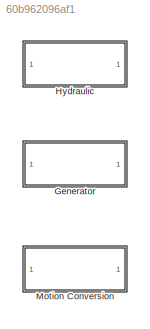
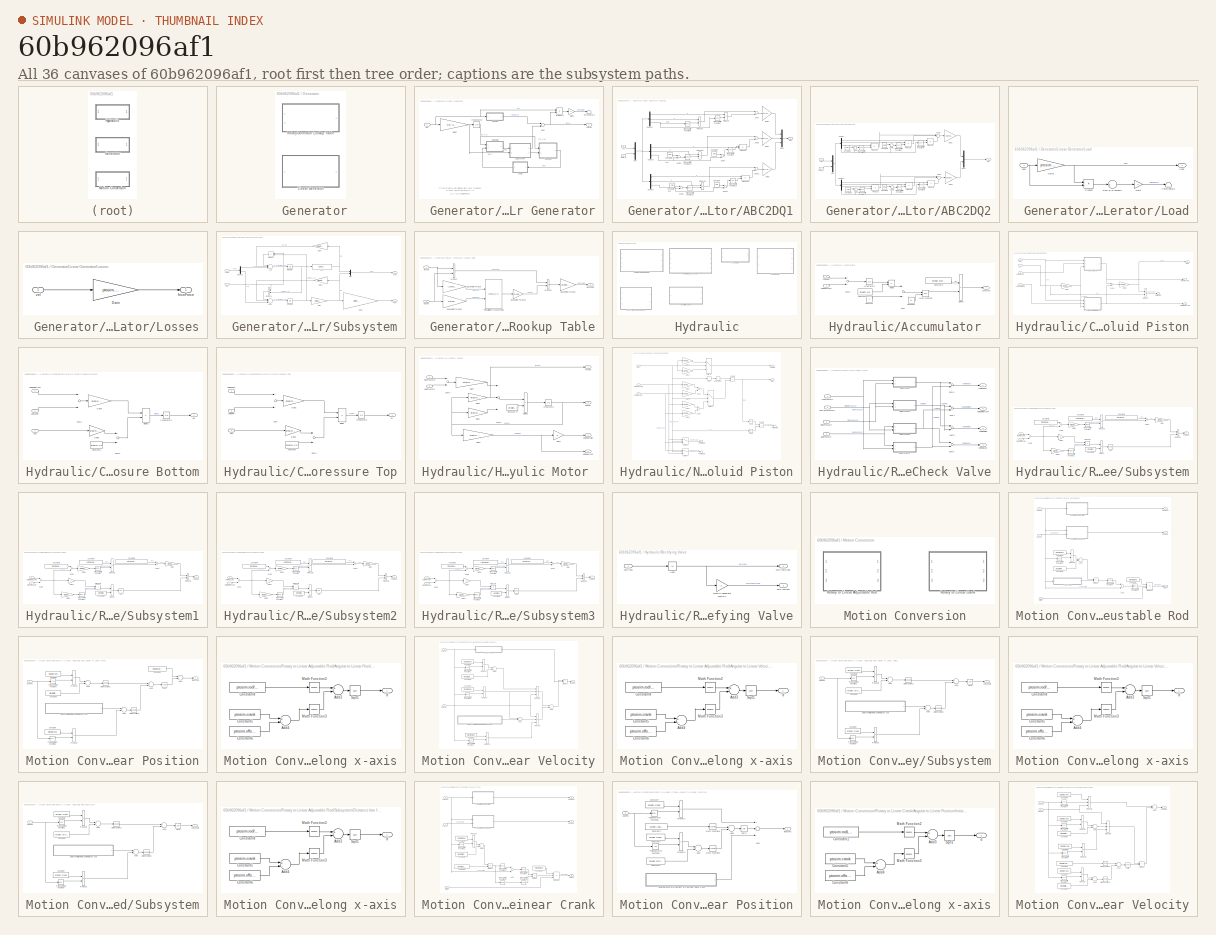
[diagram: thumbnail index - all 36 canvases of the model, root first then tree order]
MODEL slx_60b962096af1
KIND library
BLOCK [SubSystem]  Generator
  Ports = []
  RequestExecContextInheritance = off
BLOCK [SubSystem]  Generator/Linear Generator
  Ports = [1, 1]
  RequestExecContextInheritance = off
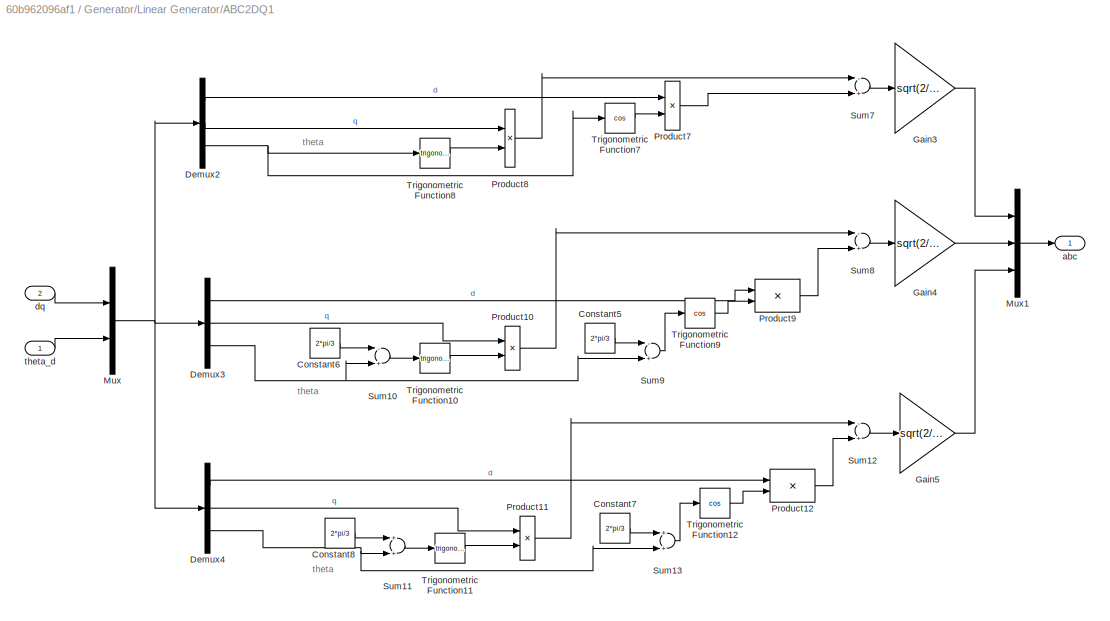
BLOCK [SubSystem]  Generator/Linear Generator/ABC2DQ1
  Ports = [2, 1]
  RequestExecContextInheritance = off
BLOCK [Constant]  Generator/Linear Generator/ABC2DQ1/Constant5
  Value = 2*pi/3
BLOCK [Constant]  Generator/Linear Generator/ABC2DQ1/Constant6
  Value = 2*pi/3
BLOCK [Constant]  Generator/Linear Generator/ABC2DQ1/Constant7
  Value = 2*pi/3
BLOCK [Constant]  Generator/Linear Generator/ABC2DQ1/Constant8
  Value = 2*pi/3
BLOCK [Demux]  Generator/Linear Generator/ABC2DQ1/Demux2
  Outputs = 3
  Ports = [1, 3]
BLOCK [Demux]  Generator/Linear Generator/ABC2DQ1/Demux3
  Outputs = 3
  Ports = [1, 3]
BLOCK [Demux]  Generator/Linear Generator/ABC2DQ1/Demux4
  Outputs = 3
  Ports = [1, 3]
BLOCK [Gain]  Generator/Linear Generator/ABC2DQ1/Gain3
  Gain = sqrt(2/3)
BLOCK [Gain]  Generator/Linear Generator/ABC2DQ1/Gain4
  Gain = sqrt(2/3)
BLOCK [Gain]  Generator/Linear Generator/ABC2DQ1/Gain5
  Gain = sqrt(2/3)
BLOCK [Mux]  Generator/Linear Generator/ABC2DQ1/Mux
  DisplayOption = bar
  Inputs = 2
  Ports = [2, 1]
BLOCK [Mux]  Generator/Linear Generator/ABC2DQ1/Mux1
  DisplayOption = bar
  Inputs = 3
  Ports = [3, 1]
BLOCK [Product]  Generator/Linear Generator/ABC2DQ1/Product10
  Ports = [2, 1]
  RndMeth = Floor
BLOCK [Product]  Generator/Linear Generator/ABC2DQ1/Product11
  Ports = [2, 1]
  RndMeth = Floor
BLOCK [Product]  Generator/Linear Generator/ABC2DQ1/Product12
  Ports = [2, 1]
  RndMeth = Floor
BLOCK [Product]  Generator/Linear Generator/ABC2DQ1/Product7
  Ports = [2, 1]
  RndMeth = Floor
BLOCK [Product]  Generator/Linear Generator/ABC2DQ1/Product8
  Ports = [2, 1]
  RndMeth = Floor
BLOCK [Product]  Generator/Linear Generator/ABC2DQ1/Product9
  Ports = [2, 1]
  RndMeth = Floor
BLOCK [Sum]  Generator/Linear Generator/ABC2DQ1/Sum10
  Inputs = -+
  Ports = [2, 1]
BLOCK [Sum]  Generator/Linear Generator/ABC2DQ1/Sum11
  Ports = [2, 1]
BLOCK [Sum]  Generator/Linear Generator/ABC2DQ1/Sum12
  Inputs = -+
  Ports = [2, 1]
BLOCK [Sum]  Generator/Linear Generator/ABC2DQ1/Sum13
  Ports = [2, 1]
BLOCK [Sum]  Generator/Linear Generator/ABC2DQ1/Sum7
  Inputs = -+
  Ports = [2, 1]
BLOCK [Sum]  Generator/Linear Generator/ABC2DQ1/Sum8
  Inputs = -+
  Ports = [2, 1]
BLOCK [Sum]  Generator/Linear Generator/ABC2DQ1/Sum9
  Inputs = -+
  Ports = [2, 1]
BLOCK [Trigonometry]  Generator/Linear Generator/ABC2DQ1/Trigonometric Function10
  Ports = [1, 1]
BLOCK [Trigonometry]  Generator/Linear Generator/ABC2DQ1/Trigonometric Function11
  Ports = [1, 1]
BLOCK [Trigonometry]  Generator/Linear Generator/ABC2DQ1/Trigonometric Function12
  Operator = cos
  Ports = [1, 1]
BLOCK [Trigonometry]  Generator/Linear Generator/ABC2DQ1/Trigonometric Function7
  Operator = cos
  Ports = [1, 1]
BLOCK [Trigonometry]  Generator/Linear Generator/ABC2DQ1/Trigonometric Function8
  Ports = [1, 1]
BLOCK [Trigonometry]  Generator/Linear Generator/ABC2DQ1/Trigonometric Function9
  Operator = cos
  Ports = [1, 1]
BLOCK [Outport]  Generator/Linear Generator/ABC2DQ1/abc
  IconDisplay = Port number
BLOCK [Inport]  Generator/Linear Generator/ABC2DQ1/dq
  IconDisplay = Port number
  Port = 2
BLOCK [Inport]  Generator/Linear Generator/ABC2DQ1/theta_d
  IconDisplay = Port number
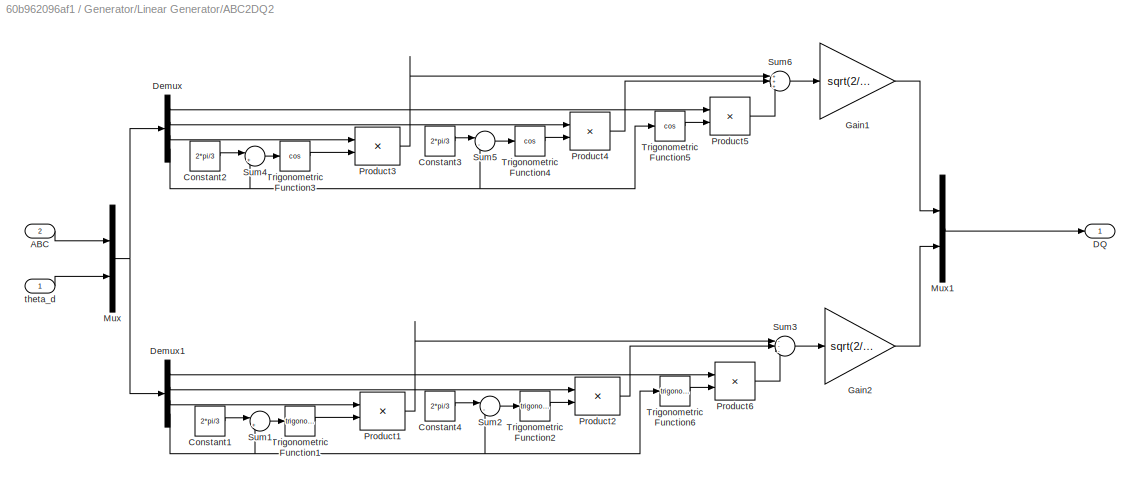
BLOCK [SubSystem]  Generator/Linear Generator/ABC2DQ2
  Ports = [2, 1]
  RequestExecContextInheritance = off
BLOCK [Inport]  Generator/Linear Generator/ABC2DQ2/ABC
  IconDisplay = Port number
  Port = 2
BLOCK [Constant]  Generator/Linear Generator/ABC2DQ2/Constant1
  Value = 2*pi/3
BLOCK [Constant]  Generator/Linear Generator/ABC2DQ2/Constant2
  Value = 2*pi/3
BLOCK [Constant]  Generator/Linear Generator/ABC2DQ2/Constant3
  Value = 2*pi/3
BLOCK [Constant]  Generator/Linear Generator/ABC2DQ2/Constant4
  Value = 2*pi/3
BLOCK [Outport]  Generator/Linear Generator/ABC2DQ2/DQ
  IconDisplay = Port number
BLOCK [Demux]  Generator/Linear Generator/ABC2DQ2/Demux
  Ports = [1, 4]
BLOCK [Demux]  Generator/Linear Generator/ABC2DQ2/Demux1
  Ports = [1, 4]
BLOCK [Gain]  Generator/Linear Generator/ABC2DQ2/Gain1
  Gain = sqrt(2/3)
BLOCK [Gain]  Generator/Linear Generator/ABC2DQ2/Gain2
  Gain = sqrt(2/3)
BLOCK [Mux]  Generator/Linear Generator/ABC2DQ2/Mux
  DisplayOption = bar
  Inputs = 2
  Ports = [2, 1]
BLOCK [Mux]  Generator/Linear Generator/ABC2DQ2/Mux1
  DisplayOption = bar
  Inputs = 2
  Ports = [2, 1]
BLOCK [Product]  Generator/Linear Generator/ABC2DQ2/Product1
  Ports = [2, 1]
  RndMeth = Floor
BLOCK [Product]  Generator/Linear Generator/ABC2DQ2/Product2
  Ports = [2, 1]
  RndMeth = Floor
BLOCK [Product]  Generator/Linear Generator/ABC2DQ2/Product3
  Ports = [2, 1]
  RndMeth = Floor
BLOCK [Product]  Generator/Linear Generator/ABC2DQ2/Product4
  Ports = [2, 1]
  RndMeth = Floor
BLOCK [Product]  Generator/Linear Generator/ABC2DQ2/Product5
  Ports = [2, 1]
  RndMeth = Floor
BLOCK [Product]  Generator/Linear Generator/ABC2DQ2/Product6
  Ports = [2, 1]
  RndMeth = Floor
BLOCK [Sum]  Generator/Linear Generator/ABC2DQ2/Sum1
  IconShape = round
  Inputs = |++
  Ports = [2, 1]
BLOCK [Sum]  Generator/Linear Generator/ABC2DQ2/Sum2
  IconShape = round
  Inputs = |-+
  Ports = [2, 1]
BLOCK [Sum]  Generator/Linear Generator/ABC2DQ2/Sum3
  IconShape = round
  Inputs = ---
  Ports = [3, 1]
BLOCK [Sum]  Generator/Linear Generator/ABC2DQ2/Sum4
  IconShape = round
  Inputs = |++
  Ports = [2, 1]
BLOCK [Sum]  Generator/Linear Generator/ABC2DQ2/Sum5
  IconShape = round
  Inputs = |-+
  Ports = [2, 1]
BLOCK [Sum]  Generator/Linear Generator/ABC2DQ2/Sum6
  IconShape = round
  Inputs = +++
  Ports = [3, 1]
BLOCK [Trigonometry]  Generator/Linear Generator/ABC2DQ2/Trigonometric Function1
  Ports = [1, 1]
BLOCK [Trigonometry]  Generator/Linear Generator/ABC2DQ2/Trigonometric Function2
  Ports = [1, 1]
BLOCK [Trigonometry]  Generator/Linear Generator/ABC2DQ2/Trigonometric Function3
  Operator = cos
  Ports = [1, 1]
BLOCK [Trigonometry]  Generator/Linear Generator/ABC2DQ2/Trigonometric Function4
  Operator = cos
  Ports = [1, 1]
BLOCK [Trigonometry]  Generator/Linear Generator/ABC2DQ2/Trigonometric Function5
  Operator = cos
  Ports = [1, 1]
BLOCK [Trigonometry]  Generator/Linear Generator/ABC2DQ2/Trigonometric Function6
  Ports = [1, 1]
BLOCK [Inport]  Generator/Linear Generator/ABC2DQ2/theta_d
  IconDisplay = Port number
BLOCK [Gain]  Generator/Linear Generator/Gain4
  Gain = -1
  OutDataTypeStr = Inherit: Inherit via internal rule
  ParamDataTypeStr = Inherit: Inherit via internal rule
  SaturateOnIntegerOverflow = off
BLOCK [Gain]  Generator/Linear Generator/Gain5
  Gain = 2*pi/(2*ptosim.tau_p)
  OutDataTypeStr = Inherit: Inherit via internal rule
  ParamDataTypeStr = Inherit: Inherit via internal rule
  SaturateOnIntegerOverflow = off
BLOCK [Integrator]  Generator/Linear Generator/Integrator2
  InitialCondition = ptosim.theta_d_0
  Ports = [1, 1]
BLOCK [SubSystem]  Generator/Linear Generator/Load
  Ports = [1, 1]
  RequestExecContextInheritance = off
BLOCK [Gain]  Generator/Linear Generator/Load/Gain
  Gain = -1
  OutDataTypeStr = Inherit: Inherit via internal rule
  ParamDataTypeStr = Inherit: Inherit via internal rule
  SaturateOnIntegerOverflow = off
BLOCK [Gain]  Generator/Linear Generator/Load/Gain1
  Gain = ptosim.Rload
  OutDataTypeStr = Inherit: Inherit via internal rule
  ParamDataTypeStr = Inherit: Inherit via internal rule
  SaturateOnIntegerOverflow = off
BLOCK [Inport]  Generator/Linear Generator/Load/Iabc
  IconDisplay = Port number
BLOCK [Product]  Generator/Linear Generator/Load/Product
  InputSameDT = off
  OutDataTypeStr = Inherit: Inherit via internal rule
  Ports = [2, 1]
  RndMeth = Floor
  SaturateOnIntegerOverflow = off
BLOCK [Sum]  Generator/Linear Generator/Load/Sum of Elements
  InputSameDT = off
  Inputs = +
  OutDataTypeStr = Inherit: Inherit via internal rule
  Ports = [1, 1]
  SaturateOnIntegerOverflow = off
BLOCK [Terminator]  Generator/Linear Generator/Load/Terminator3
BLOCK [Outport]  Generator/Linear Generator/Load/Vabc
  IconDisplay = Port number
BLOCK [SubSystem]  Generator/Linear Generator/Losses
  Ports = [1, 1]
  RequestExecContextInheritance = off
BLOCK [Gain]  Generator/Linear Generator/Losses/Gain
  Gain = ptosim.Bfric
  OutDataTypeStr = Inherit: Inherit via internal rule
  ParamDataTypeStr = Inherit: Inherit via internal rule
  SaturateOnIntegerOverflow = off
BLOCK [Outport]  Generator/Linear Generator/Losses/friceForce
  IconDisplay = Port number
BLOCK [Inport]  Generator/Linear Generator/Losses/vel
  IconDisplay = Port number
BLOCK [Product]  Generator/Linear Generator/Product1
  InputSameDT = off
  OutDataTypeStr = Inherit: Inherit via internal rule
  Ports = [2, 1]
  RndMeth = Floor
  SaturateOnIntegerOverflow = off
BLOCK [SubSystem]  Generator/Linear Generator/Subsystem
  Ports = [2, 2]
  RequestExecContextInheritance = off
BLOCK [Sum]  Generator/Linear Generator/Subsystem/Add
  InputSameDT = off
  Inputs = +-+
  OutDataTypeStr = Inherit: Inherit via internal rule
  Ports = [3, 1]
  SaturateOnIntegerOverflow = off
BLOCK [Sum]  Generator/Linear Generator/Subsystem/Add1
  InputSameDT = off
  Inputs = --+
  OutDataTypeStr = Inherit: Inherit via internal rule
  Ports = [3, 1]
  SaturateOnIntegerOverflow = off
BLOCK [Demux]  Generator/Linear Generator/Subsystem/Demux2
  Outputs = 2
  Ports = [1, 2]
BLOCK [Fcn]  Generator/Linear Generator/Subsystem/Fcn
  Expr = ( u(1) - ptosim.lambda_fd ) / ptosim.Ls
BLOCK [Outport]  Generator/Linear Generator/Subsystem/Fem
  IconDisplay = Port number
BLOCK [Gain]  Generator/Linear Generator/Subsystem/Gain
  Gain = 1/ptosim.Ls
  OutDataTypeStr = Inherit: Inherit via internal rule
  ParamDataTypeStr = Inherit: Inherit via internal rule
  SaturateOnIntegerOverflow = off
BLOCK [Gain]  Generator/Linear Generator/Subsystem/Gain1
  Gain = pi/ptosim.tau_p*ptosim.lambda_fd
  OutDataTypeStr = Inherit: Inherit via internal rule
  ParamDataTypeStr = Inherit: Inherit via internal rule
  SaturateOnIntegerOverflow = off
BLOCK [Gain]  Generator/Linear Generator/Subsystem/Gain2
  Gain = ptosim.Rs
  OutDataTypeStr = Inherit: Inherit via internal rule
  ParamDataTypeStr = Inherit: Inherit via internal rule
  SaturateOnIntegerOverflow = off
BLOCK [Gain]  Generator/Linear Generator/Subsystem/Gain3
  Gain = ptosim.Rs
  OutDataTypeStr = Inherit: Inherit via internal rule
  ParamDataTypeStr = Inherit: Inherit via internal rule
  SaturateOnIntegerOverflow = off
BLOCK [Integrator]  Generator/Linear Generator/Subsystem/Integrator
  InitialCondition = ptosim.lambda_sd_0
  Ports = [1, 1]
BLOCK [Integrator]  Generator/Linear Generator/Subsystem/Integrator1
  InitialCondition = ptosim.lambda_sq_0
  Ports = [1, 1]
BLOCK [Mux]  Generator/Linear Generator/Subsystem/Mux
  DisplayOption = bar
  Inputs = 2
  Ports = [2, 1]
BLOCK [Product]  Generator/Linear Generator/Subsystem/Product
  InputSameDT = off
  OutDataTypeStr = Inherit: Inherit via internal rule
  Ports = [2, 1]
  SaturateOnIntegerOverflow = off
BLOCK [Product]  Generator/Linear Generator/Subsystem/Product1
  InputSameDT = off
  OutDataTypeStr = Inherit: Inherit via internal rule
  Ports = [2, 1]
  SaturateOnIntegerOverflow = off
BLOCK [Outport]  Generator/Linear Generator/Subsystem/isdq
  IconDisplay = Port number
  Port = 2
BLOCK [Inport]  Generator/Linear Generator/Subsystem/vsdq
  IconDisplay = Port number
BLOCK [Inport]  Generator/Linear Generator/Subsystem/wd
  IconDisplay = Port number
  Port = 2
BLOCK [Sum]  Generator/Linear Generator/Sum
  InputSameDT = off
  OutDataTypeStr = Inherit: Inherit via internal rule
  Ports = [2, 1]
  SaturateOnIntegerOverflow = off
BLOCK [Terminator]  Generator/Linear Generator/Terminator3
BLOCK [Outport]  Generator/Linear Generator/force
  IconDisplay = Port number
BLOCK [Inport]  Generator/Linear Generator/vel
  IconDisplay = Port number
BLOCK [SubSystem]  Generator/Rotary Generator Lookup Table
  Ports = [2, 1]
  RequestExecContextInheritance = off
BLOCK [Gain]  Generator/Rotary Generator Lookup Table/Base Motor Torque
  Gain = -1/ptosim.TgenBase
  OutDataTypeStr = Inherit: Inherit via internal rule
  ParamDataTypeStr = Inherit: Inherit via internal rule
  SaturateOnIntegerOverflow = off
BLOCK [Gain]  Generator/Rotary Generator Lookup Table/Base Motor Torque1
  Gain = 1/ptosim.omegaBase
  OutDataTypeStr = Inherit: Inherit via internal rule
  ParamDataTypeStr = Inherit: Inherit via internal rule
  SaturateOnIntegerOverflow = off
BLOCK [Gain]  Generator/Rotary Generator Lookup Table/Base Motor Torque2
  Gain = ptosim.driveEff
  OutDataTypeStr = Inherit: Inherit via internal rule
  ParamDataTypeStr = Inherit: Inherit via internal rule
  SaturateOnIntegerOverflow = off
BLOCK [Gain]  Generator/Rotary Generator Lookup Table/Base Motor Torque3
  Gain = 1/100
  OutDataTypeStr = Inherit: Inherit via internal rule
  ParamDataTypeStr = Inherit: Inherit via internal rule
  SaturateOnIntegerOverflow = off
BLOCK [Lookup_n-D]  Generator/Rotary Generator Lookup Table/PM p.u. Efficiency Lookup Table
  BreakpointsForDimension1 = tot.Tpu(:,1)
  BreakpointsForDimension2 = tot.omegapu(1,:)
  InterpMethod = Flat
  Ports = [2, 1]
  Table = tot.eff
BLOCK [Product]  Generator/Rotary Generator Lookup Table/Product
  InputSameDT = off
  OutDataTypeStr = Inherit: Inherit via internal rule
  Ports = [2, 1]
  SaturateOnIntegerOverflow = off
BLOCK [Product]  Generator/Rotary Generator Lookup Table/Product1
  InputSameDT = off
  OutDataTypeStr = Inherit: Inherit via internal rule
  Ports = [2, 1]
  SaturateOnIntegerOverflow = off
BLOCK [Inport]  Generator/Rotary Generator Lookup Table/angVel
  IconDisplay = Port number
  Port = 2
BLOCK [Outport]  Generator/Rotary Generator Lookup Table/elecPower
  IconDisplay = Port number
BLOCK [Inport]  Generator/Rotary Generator Lookup Table/torque
  IconDisplay = Port number
BLOCK [SubSystem] Hydraulic
  Ports = []
  RequestExecContextInheritance = off
BLOCK [SubSystem] Hydraulic/Accumulator
  Ports = [2, 1]
  RequestExecContextInheritance = off
BLOCK [Constant] Hydraulic/Accumulator/Constant
BLOCK [Constant] Hydraulic/Accumulator/Constant3
  Value = ptosim.pIprecharge
BLOCK [Constant] Hydraulic/Accumulator/Constant4
  Value = ptosim.VI0
BLOCK [Product] Hydraulic/Accumulator/Divide
  InputSameDT = off
  Inputs = */
  OutDataTypeStr = Inherit: Inherit via internal rule
  Ports = [2, 1]
  RndMeth = Floor
  SaturateOnIntegerOverflow = off
BLOCK [Product] Hydraulic/Accumulator/Divide1
  InputSameDT = off
  Inputs = */
  OutDataTypeStr = Inherit: Inherit via internal rule
  Ports = [2, 1]
  RndMeth = Floor
  SaturateOnIntegerOverflow = off
BLOCK [Constant] Hydraulic/Accumulator/Exponent
  Value = 1.4
BLOCK [Integrator] Hydraulic/Accumulator/Integrator4
  InitialCondition = ptosim.VIeq
  Ports = [1, 1]
BLOCK [Math] Hydraulic/Accumulator/Math Function
  Operator = pow
  Ports = [2, 1]
BLOCK [Sum] Hydraulic/Accumulator/Sum
  InputSameDT = off
  Inputs = -+
  OutDataTypeStr = Inherit: Inherit via internal rule
  Ports = [2, 1]
  SaturateOnIntegerOverflow = off
BLOCK [Sum] Hydraulic/Accumulator/Sum2
  InputSameDT = off
  OutDataTypeStr = Inherit: Inherit via internal rule
  Ports = [2, 1]
  SaturateOnIntegerOverflow = off
BLOCK [Outport] Hydraulic/Accumulator/pressure
  IconDisplay = Port number
BLOCK [Inport] Hydraulic/Accumulator/volFlowAccum
  IconDisplay = Port number
  Port = 2
BLOCK [Inport] Hydraulic/Accumulator/volFlowM
  IconDisplay = Port number
BLOCK [SubSystem] Hydraulic/Compressible Fluid Piston
  Ports = [4, 3]
  RequestExecContextInheritance = off
BLOCK [Gain] Hydraulic/Compressible Fluid Piston/Gain6
  Gain = ptosim.Ap
  OutDataTypeStr = Inherit: Inherit via internal rule
  ParamDataTypeStr = Inherit: Inherit via internal rule
  SaturateOnIntegerOverflow = off
BLOCK [Gain] Hydraulic/Compressible Fluid Piston/Gain7
  Gain = ptosim.Ap
  OutDataTypeStr = Inherit: Inherit via internal rule
  ParamDataTypeStr = Inherit: Inherit via internal rule
  SaturateOnIntegerOverflow = off
BLOCK [SubSystem] Hydraulic/Compressible Fluid Piston/Pressure Bottom
  Ports = [3, 1]
  RequestExecContextInheritance = off
BLOCK [Constant] Hydraulic/Compressible Fluid Piston/Pressure Bottom/Constant1
  Value = ptosim.Vo
BLOCK [Product] Hydraulic/Compressible Fluid Piston/Pressure Bottom/Divide1
  InputSameDT = off
  Inputs = */
  OutDataTypeStr = Inherit: Inherit via internal rule
  Ports = [2, 1]
  RndMeth = Floor
  SaturateOnIntegerOverflow = off
BLOCK [Gain] Hydraulic/Compressible Fluid Piston/Pressure Bottom/Gain4
  Gain = ptosim.Beta_e
  OutDataTypeStr = Inherit: Inherit via internal rule
  ParamDataTypeStr = Inherit: Inherit via internal rule
  SaturateOnIntegerOverflow = off
BLOCK [Gain] Hydraulic/Compressible Fluid Piston/Pressure Bottom/Gain5
  Gain = ptosim.Ap
  OutDataTypeStr = Inherit: Inherit via internal rule
  ParamDataTypeStr = Inherit: Inherit via internal rule
  SaturateOnIntegerOverflow = off
BLOCK [Integrator] Hydraulic/Compressible Fluid Piston/Pressure Bottom/Integrator3
  InitialCondition = ptosim.pBi
  LowerSaturationLimit = pBeq
  Ports = [1, 1]
  UpperSaturationLimit = pBupper_limit
BLOCK [Sum] Hydraulic/Compressible Fluid Piston/Pressure Bottom/Sum2
  InputSameDT = off
  Inputs = +-
  OutDataTypeStr = Inherit: Inherit via internal rule
  Ports = [2, 1]
  SaturateOnIntegerOverflow = off
BLOCK [Sum] Hydraulic/Compressible Fluid Piston/Pressure Bottom/Sum3
  InputSameDT = off
  OutDataTypeStr = Inherit: Inherit via internal rule
  Ports = [2, 1]
  SaturateOnIntegerOverflow = off
BLOCK [Outport] Hydraulic/Compressible Fluid Piston/Pressure Bottom/pB
  IconDisplay = Port number
BLOCK [Inport] Hydraulic/Compressible Fluid Piston/Pressure Bottom/pos
  IconDisplay = Port number
BLOCK [Inport] Hydraulic/Compressible Fluid Piston/Pressure Bottom/volFLowP
  IconDisplay = Port number
  Port = 3
BLOCK [Inport] Hydraulic/Compressible Fluid Piston/Pressure Bottom/volFlowBottom
  IconDisplay = Port number
  Port = 2
BLOCK [SubSystem] Hydraulic/Compressible Fluid Piston/Pressure Top
  Ports = [3, 1]
  RequestExecContextInheritance = off
BLOCK [Constant] Hydraulic/Compressible Fluid Piston/Pressure Top/Constant
  Value = ptosim.Vo
BLOCK [Product] Hydraulic/Compressible Fluid Piston/Pressure Top/Divide
  InputSameDT = off
  Inputs = */
  OutDataTypeStr = Inherit: Inherit via internal rule
  Ports = [2, 1]
  RndMeth = Floor
  SaturateOnIntegerOverflow = off
BLOCK [Gain] Hydraulic/Compressible Fluid Piston/Pressure Top/Gain1
  Gain = ptosim.Beta_e
  OutDataTypeStr = Inherit: Inherit via internal rule
  ParamDataTypeStr = Inherit: Inherit via internal rule
  SaturateOnIntegerOverflow = off
BLOCK [Gain] Hydraulic/Compressible Fluid Piston/Pressure Top/Gain2
  Gain = ptosim.Ap
  OutDataTypeStr = Inherit: Inherit via internal rule
  ParamDataTypeStr = Inherit: Inherit via internal rule
  SaturateOnIntegerOverflow = off
BLOCK [Integrator] Hydraulic/Compressible Fluid Piston/Pressure Top/Integrator2
  InitialCondition = ptosim.pAi
  LowerSaturationLimit = pAeq
  Ports = [1, 1]
  UpperSaturationLimit = pAupper_limit
BLOCK [Sum] Hydraulic/Compressible Fluid Piston/Pressure Top/Sum
  InputSameDT = off
  OutDataTypeStr = Inherit: Inherit via internal rule
  Ports = [2, 1]
  SaturateOnIntegerOverflow = off
BLOCK [Sum] Hydraulic/Compressible Fluid Piston/Pressure Top/Sum1
  InputSameDT = off
  Inputs = -+
  OutDataTypeStr = Inherit: Inherit via internal rule
  Ports = [2, 1]
  SaturateOnIntegerOverflow = off
BLOCK [Outport] Hydraulic/Compressible Fluid Piston/Pressure Top/pA
  IconDisplay = Port number
BLOCK [Inport] Hydraulic/Compressible Fluid Piston/Pressure Top/pos
  IconDisplay = Port number
BLOCK [Inport] Hydraulic/Compressible Fluid Piston/Pressure Top/volFlowP
  IconDisplay = Port number
  Port = 3
BLOCK [Inport] Hydraulic/Compressible Fluid Piston/Pressure Top/volFlowTop
  IconDisplay = Port number
  Port = 2
BLOCK [Product] Hydraulic/Compressible Fluid Piston/Product
  InputSameDT = off
  OutDataTypeStr = Inherit: Inherit via internal rule
  Ports = [2, 1]
  RndMeth = Floor
  SaturateOnIntegerOverflow = off
BLOCK [Sum] Hydraulic/Compressible Fluid Piston/Sum4
  InputSameDT = off
  Inputs = -+
  OutDataTypeStr = Inherit: Inherit via internal rule
  Ports = [2, 1]
  SaturateOnIntegerOverflow = off
BLOCK [Terminator] Hydraulic/Compressible Fluid Piston/Terminator
BLOCK [Outport] Hydraulic/Compressible Fluid Piston/bottomPressure
  IconDisplay = Port number
  Port = 3
BLOCK [Outport] Hydraulic/Compressible Fluid Piston/force
  IconDisplay = Port number
BLOCK [Inport] Hydraulic/Compressible Fluid Piston/pos
  IconDisplay = Port number
BLOCK [Outport] Hydraulic/Compressible Fluid Piston/topPressure
  IconDisplay = Port number
  Port = 2
BLOCK [Inport] Hydraulic/Compressible Fluid Piston/vel
  IconDisplay = Port number
  Port = 2
BLOCK [Inport] Hydraulic/Compressible Fluid Piston/volFlowBottom
  IconDisplay = Port number
  Port = 4
BLOCK [Inport] Hydraulic/Compressible Fluid Piston/volFlowTop
  IconDisplay = Port number
  Port = 3
BLOCK [SubSystem] Hydraulic/Hydraulic Motor 
  Ports = [2, 4]
  RequestExecContextInheritance = off
BLOCK [Constant] Hydraulic/Hydraulic Motor /Constant47
  Value = ptosim.J
BLOCK [Product] Hydraulic/Hydraulic Motor /Divide1
  InputSameDT = off
  Inputs = */
  OutDataTypeStr = Inherit: Inherit via internal rule
  Ports = [2, 1]
  RndMeth = Floor
  SaturateOnIntegerOverflow = off
BLOCK [Gain] Hydraulic/Hydraulic Motor /Gain1
  Gain = ptosim.bf
  OutDataTypeStr = Inherit: Inherit via internal rule
  ParamDataTypeStr = Inherit: Inherit via internal rule
  SaturateOnIntegerOverflow = off
BLOCK [Gain] Hydraulic/Hydraulic Motor /Gain2
  Gain = ptosim.bg
  OutDataTypeStr = Inherit: Inherit via internal rule
  ParamDataTypeStr = Inherit: Inherit via internal rule
  SaturateOnIntegerOverflow = off
BLOCK [Gain] Hydraulic/Hydraulic Motor /Gain3
  Gain = ptosim.alpha*ptosim.D
  OutDataTypeStr = Inherit: Inherit via internal rule
  ParamDataTypeStr = Inherit: Inherit via internal rule
  SaturateOnIntegerOverflow = off
BLOCK [Gain] Hydraulic/Hydraulic Motor /Gain4
  Gain = -1
  OutDataTypeStr = Inherit: Inherit via internal rule
  ParamDataTypeStr = Inherit: Inherit via internal rule
  SaturateOnIntegerOverflow = off
BLOCK [Gain] Hydraulic/Hydraulic Motor /Gain7
  Gain = ptosim.alpha*ptosim.D
  OutDataTypeStr = Inherit: Inherit via internal rule
  ParamDataTypeStr = Inherit: Inherit via internal rule
  SaturateOnIntegerOverflow = off
BLOCK [Integrator] Hydraulic/Hydraulic Motor /Integrator1
  InitialCondition = ptosim.angVelInit
  Ports = [1, 1]
BLOCK [Sum] Hydraulic/Hydraulic Motor /Sum1
  InputSameDT = off
  Inputs = +--
  OutDataTypeStr = Inherit: Inherit via internal rule
  Ports = [3, 1]
  SaturateOnIntegerOverflow = off
BLOCK [Sum] Hydraulic/Hydraulic Motor /Sum2
  InputSameDT = off
  Inputs = +-
  OutDataTypeStr = Inherit: Inherit via internal rule
  Ports = [2, 1]
  SaturateOnIntegerOverflow = off
BLOCK [Outport] Hydraulic/Hydraulic Motor /angVel
  IconDisplay = Port number
  Port = 2
BLOCK [Inport] Hydraulic/Hydraulic Motor /highPressure
  IconDisplay = Port number
BLOCK [Inport] Hydraulic/Hydraulic Motor /lowPressure
  IconDisplay = Port number
  Port = 2
BLOCK [Outport] Hydraulic/Hydraulic Motor /torque
  IconDisplay = Port number
BLOCK [Outport] Hydraulic/Hydraulic Motor /volFlowMHigh
  IconDisplay = Port number
  Port = 3
BLOCK [Outport] Hydraulic/Hydraulic Motor /volFlowMLow
  IconDisplay = Port number
  Port = 4
BLOCK [SubSystem] Hydraulic/Noncompressible Fluid Piston
  Ports = [3, 2]
  RequestExecContextInheritance = off
BLOCK [Abs] Hydraulic/Noncompressible Fluid Piston/Abs4
  SaturateOnIntegerOverflow = off
BLOCK [Abs] Hydraulic/Noncompressible Fluid Piston/Abs5
  SaturateOnIntegerOverflow = off
BLOCK [Gain] Hydraulic/Noncompressible Fluid Piston/Gain1
  Gain = ptosim.topA
  OutDataTypeStr = Inherit: Inherit via internal rule
  ParamDataTypeStr = Inherit: Inherit via internal rule
  SaturateOnIntegerOverflow = off
BLOCK [Gain] Hydraulic/Noncompressible Fluid Piston/Gain2
  Gain = ptosim.botA
  OutDataTypeStr = Inherit: Inherit via internal rule
  ParamDataTypeStr = Inherit: Inherit via internal rule
  SaturateOnIntegerOverflow = off
BLOCK [Gain] Hydraulic/Noncompressible Fluid Piston/Gain3
  Gain = ptosim.topA
  OutDataTypeStr = Inherit: Inherit via internal rule
  ParamDataTypeStr = Inherit: Inherit via internal rule
  SaturateOnIntegerOverflow = off
BLOCK [Gain] Hydraulic/Noncompressible Fluid Piston/Gain4
  Gain = ptosim.botA
  OutDataTypeStr = Inherit: Inherit via internal rule
  ParamDataTypeStr = Inherit: Inherit via internal rule
  SaturateOnIntegerOverflow = off
BLOCK [Gain] Hydraulic/Noncompressible Fluid Piston/Gain5
  Gain = ptosim.topA
  OutDataTypeStr = Inherit: Inherit via internal rule
  ParamDataTypeStr = Inherit: Inherit via internal rule
  SaturateOnIntegerOverflow = off
BLOCK [Gain] Hydraulic/Noncompressible Fluid Piston/Gain6
  Gain = ptosim.botA
  OutDataTypeStr = Inherit: Inherit via internal rule
  ParamDataTypeStr = Inherit: Inherit via internal rule
  SaturateOnIntegerOverflow = off
BLOCK [Product] Hydraulic/Noncompressible Fluid Piston/Podut1
  InputSameDT = off
  OutDataTypeStr = Inherit: Inherit via internal rule
  Ports = [2, 1]
  SaturateOnIntegerOverflow = off
BLOCK [Product] Hydraulic/Noncompressible Fluid Piston/Podut2
  InputSameDT = off
  OutDataTypeStr = Inherit: Inherit via internal rule
  Ports = [2, 1]
  SaturateOnIntegerOverflow = off
BLOCK [Signum] Hydraulic/Noncompressible Fluid Piston/Sign
BLOCK [Sum] Hydraulic/Noncompressible Fluid Piston/Sum1
  InputSameDT = off
  Inputs = +-
  OutDataTypeStr = Inherit: Inherit via internal rule
  Ports = [2, 1]
  SaturateOnIntegerOverflow = off
BLOCK [Sum] Hydraulic/Noncompressible Fluid Piston/Sum2
  InputSameDT = off
  Inputs = +-
  OutDataTypeStr = Inherit: Inherit via internal rule
  Ports = [2, 1]
  SaturateOnIntegerOverflow = off
BLOCK [Switch] Hydraulic/Noncompressible Fluid Piston/Switch1
  Criteria = u2 > Threshold
  InputSameDT = off
  SaturateOnIntegerOverflow = off
BLOCK [Switch] Hydraulic/Noncompressible Fluid Piston/Switch2
  Criteria = u2 > Threshold
  InputSameDT = off
  SaturateOnIntegerOverflow = off
BLOCK [Switch] Hydraulic/Noncompressible Fluid Piston/Switch3
  Criteria = u2 > Threshold
  InputSameDT = off
  SaturateOnIntegerOverflow = off
BLOCK [Switch] Hydraulic/Noncompressible Fluid Piston/Switch4
  Criteria = u2 > Threshold
  InputSameDT = off
  SaturateOnIntegerOverflow = off
BLOCK [Terminator] Hydraulic/Noncompressible Fluid Piston/Terminator1
BLOCK [Terminator] Hydraulic/Noncompressible Fluid Piston/Terminator2
BLOCK [Terminator] Hydraulic/Noncompressible Fluid Piston/Terminator3
BLOCK [UnaryMinus] Hydraulic/Noncompressible Fluid Piston/Unary Minus
BLOCK [Outport] Hydraulic/Noncompressible Fluid Piston/force
  IconDisplay = Port number
BLOCK [Inport] Hydraulic/Noncompressible Fluid Piston/highPressure
  IconDisplay = Port number
  Port = 2
BLOCK [Inport] Hydraulic/Noncompressible Fluid Piston/lowPressure
  IconDisplay = Port number
  Port = 3
BLOCK [Inport] Hydraulic/Noncompressible Fluid Piston/vel
  IconDisplay = Port number
BLOCK [Outport] Hydraulic/Noncompressible Fluid Piston/volFlow
  IconDisplay = Port number
  Port = 2
BLOCK [SubSystem] Hydraulic/Rectifying Check Valve
  Ports = [4, 4]
  RequestExecContextInheritance = off
BLOCK [SubSystem] Hydraulic/Rectifying Check Valve/Subsystem
  Ports = [2, 1]
  RequestExecContextInheritance = off
BLOCK [Constant] Hydraulic/Rectifying Check Valve/Subsystem/Constant1
  Value = (ptosim.Amax-ptosim.Amin)/2+ptosim.Amin
BLOCK [Constant] Hydraulic/Rectifying Check Valve/Subsystem/Constant4
  Value = (ptosim.Amax-ptosim.Amin)/2
BLOCK [Constant] Hydraulic/Rectifying Check Valve/Subsystem/Constant5
  Value = (ptosim.pMax+ptosim.pMin)/2
BLOCK [Constant] Hydraulic/Rectifying Check Valve/Subsystem/Constant8
  Value = ptosim.rho
BLOCK [Product] Hydraulic/Rectifying Check Valve/Subsystem/Divide2
  InputSameDT = off
  Inputs = */
  OutDataTypeStr = Inherit: Inherit via internal rule
  Ports = [2, 1]
  RndMeth = Floor
  SaturateOnIntegerOverflow = off
BLOCK [Gain] Hydraulic/Rectifying Check Valve/Subsystem/Gain
  Gain = ptosim.Cd
  OutDataTypeStr = Inherit: Inherit via internal rule
  ParamDataTypeStr = Inherit: Inherit via internal rule
  SaturateOnIntegerOverflow = off
BLOCK [Gain] Hydraulic/Rectifying Check Valve/Subsystem/Gain1
  Gain = ptosim.k2
  OutDataTypeStr = Inherit: Inherit via internal rule
  ParamDataTypeStr = Inherit: Inherit via internal rule
  SaturateOnIntegerOverflow = off
BLOCK [Gain] Hydraulic/Rectifying Check Valve/Subsystem/Gain2
  Gain = 2
  OutDataTypeStr = Inherit: Inherit via internal rule
  ParamDataTypeStr = Inherit: Inherit via internal rule
  SaturateOnIntegerOverflow = off
BLOCK [Gain] Hydraulic/Rectifying Check Valve/Subsystem/Gain3
  Gain = ptosim.k1
  OutDataTypeStr = Inherit: Inherit via internal rule
  ParamDataTypeStr = Inherit: Inherit via internal rule
  SaturateOnIntegerOverflow = off
BLOCK [Product] Hydraulic/Rectifying Check Valve/Subsystem/Product3
  InputSameDT = off
  OutDataTypeStr = Inherit: Inherit via internal rule
  Ports = [2, 1]
  RndMeth = Floor
  SaturateOnIntegerOverflow = off
BLOCK [Product] Hydraulic/Rectifying Check Valve/Subsystem/Product5
  InputSameDT = off
  OutDataTypeStr = Inherit: Inherit via internal rule
  Ports = [2, 1]
  RndMeth = Floor
  SaturateOnIntegerOverflow = off
BLOCK [Product] Hydraulic/Rectifying Check Valve/Subsystem/Product6
  InputSameDT = off
  OutDataTypeStr = Inherit: Inherit via internal rule
  Ports = [2, 1]
  RndMeth = Floor
  SaturateOnIntegerOverflow = off
BLOCK [Sqrt] Hydraulic/Rectifying Check Valve/Subsystem/Sqrt
BLOCK [Sum] Hydraulic/Rectifying Check Valve/Subsystem/Sum2
  InputSameDT = off
  Inputs = +-
  OutDataTypeStr = Inherit: Inherit via internal rule
  Ports = [2, 1]
  SaturateOnIntegerOverflow = off
BLOCK [Sum] Hydraulic/Rectifying Check Valve/Subsystem/Sum4
  InputSameDT = off
  OutDataTypeStr = Inherit: Inherit via internal rule
  Ports = [2, 1]
  SaturateOnIntegerOverflow = off
BLOCK [Sum] Hydraulic/Rectifying Check Valve/Subsystem/Sum5
  InputSameDT = off
  Inputs = -+
  OutDataTypeStr = Inherit: Inherit via internal rule
  Ports = [2, 1]
  SaturateOnIntegerOverflow = off
BLOCK [Trigonometry] Hydraulic/Rectifying Check Valve/Subsystem/Trigonometric Function
  Operator = tanh
  Ports = [1, 1]
BLOCK [Trigonometry] Hydraulic/Rectifying Check Valve/Subsystem/Trigonometric Function1
  Operator = tanh
  Ports = [1, 1]
BLOCK [Inport] Hydraulic/Rectifying Check Valve/Subsystem/highPressure
  IconDisplay = Port number
  Port = 2
BLOCK [Inport] Hydraulic/Rectifying Check Valve/Subsystem/topPressure
  IconDisplay = Port number
BLOCK [Outport] Hydraulic/Rectifying Check Valve/Subsystem/volFlow1
  IconDisplay = Port number
BLOCK [SubSystem] Hydraulic/Rectifying Check Valve/Subsystem1
  Ports = [2, 1]
  RequestExecContextInheritance = off
BLOCK [Constant] Hydraulic/Rectifying Check Valve/Subsystem1/Constant1
  Value = (ptosim.Amax-ptosim.Amin)/2+ptosim.Amin
BLOCK [Constant] Hydraulic/Rectifying Check Valve/Subsystem1/Constant4
  Value = (ptosim.Amax-ptosim.Amin)/2
BLOCK [Constant] Hydraulic/Rectifying Check Valve/Subsystem1/Constant5
  Value = (ptosim.pMax+ptosim.pMin)/2
BLOCK [Constant] Hydraulic/Rectifying Check Valve/Subsystem1/Constant8
  Value = ptosim.rho
BLOCK [Product] Hydraulic/Rectifying Check Valve/Subsystem1/Divide2
  InputSameDT = off
  Inputs = */
  OutDataTypeStr = Inherit: Inherit via internal rule
  Ports = [2, 1]
  RndMeth = Floor
  SaturateOnIntegerOverflow = off
BLOCK [Gain] Hydraulic/Rectifying Check Valve/Subsystem1/Gain
  Gain = ptosim.Cd
  OutDataTypeStr = Inherit: Inherit via internal rule
  ParamDataTypeStr = Inherit: Inherit via internal rule
  SaturateOnIntegerOverflow = off
BLOCK [Gain] Hydraulic/Rectifying Check Valve/Subsystem1/Gain1
  Gain = ptosim.k2
  OutDataTypeStr = Inherit: Inherit via internal rule
  ParamDataTypeStr = Inherit: Inherit via internal rule
  SaturateOnIntegerOverflow = off
BLOCK [Gain] Hydraulic/Rectifying Check Valve/Subsystem1/Gain2
  Gain = 2
  OutDataTypeStr = Inherit: Inherit via internal rule
  ParamDataTypeStr = Inherit: Inherit via internal rule
  SaturateOnIntegerOverflow = off
BLOCK [Gain] Hydraulic/Rectifying Check Valve/Subsystem1/Gain3
  Gain = ptosim.k1
  OutDataTypeStr = Inherit: Inherit via internal rule
  ParamDataTypeStr = Inherit: Inherit via internal rule
  SaturateOnIntegerOverflow = off
BLOCK [Product] Hydraulic/Rectifying Check Valve/Subsystem1/Product3
  InputSameDT = off
  OutDataTypeStr = Inherit: Inherit via internal rule
  Ports = [2, 1]
  RndMeth = Floor
  SaturateOnIntegerOverflow = off
BLOCK [Product] Hydraulic/Rectifying Check Valve/Subsystem1/Product5
  InputSameDT = off
  OutDataTypeStr = Inherit: Inherit via internal rule
  Ports = [2, 1]
  RndMeth = Floor
  SaturateOnIntegerOverflow = off
BLOCK [Product] Hydraulic/Rectifying Check Valve/Subsystem1/Product6
  InputSameDT = off
  OutDataTypeStr = Inherit: Inherit via internal rule
  Ports = [2, 1]
  RndMeth = Floor
  SaturateOnIntegerOverflow = off
BLOCK [Sqrt] Hydraulic/Rectifying Check Valve/Subsystem1/Sqrt
BLOCK [Sum] Hydraulic/Rectifying Check Valve/Subsystem1/Sum2
  InputSameDT = off
  Inputs = +-
  OutDataTypeStr = Inherit: Inherit via internal rule
  Ports = [2, 1]
  SaturateOnIntegerOverflow = off
BLOCK [Sum] Hydraulic/Rectifying Check Valve/Subsystem1/Sum4
  InputSameDT = off
  OutDataTypeStr = Inherit: Inherit via internal rule
  Ports = [2, 1]
  SaturateOnIntegerOverflow = off
BLOCK [Sum] Hydraulic/Rectifying Check Valve/Subsystem1/Sum5
  InputSameDT = off
  Inputs = -+
  OutDataTypeStr = Inherit: Inherit via internal rule
  Ports = [2, 1]
  SaturateOnIntegerOverflow = off
BLOCK [Trigonometry] Hydraulic/Rectifying Check Valve/Subsystem1/Trigonometric Function
  Operator = tanh
  Ports = [1, 1]
BLOCK [Trigonometry] Hydraulic/Rectifying Check Valve/Subsystem1/Trigonometric Function1
  Operator = tanh
  Ports = [1, 1]
BLOCK [Inport] Hydraulic/Rectifying Check Valve/Subsystem1/bottomPressure
  IconDisplay = Port number
BLOCK [Inport] Hydraulic/Rectifying Check Valve/Subsystem1/highPressure
  IconDisplay = Port number
  Port = 2
BLOCK [Outport] Hydraulic/Rectifying Check Valve/Subsystem1/volFlow2
  IconDisplay = Port number
BLOCK [SubSystem] Hydraulic/Rectifying Check Valve/Subsystem2
  Ports = [2, 1]
  RequestExecContextInheritance = off
BLOCK [Constant] Hydraulic/Rectifying Check Valve/Subsystem2/Constant1
  Value = (ptosim.Amax-ptosim.Amin)/2+ptosim.Amin
BLOCK [Constant] Hydraulic/Rectifying Check Valve/Subsystem2/Constant4
  Value = (ptosim.Amax-ptosim.Amin)/2
BLOCK [Constant] Hydraulic/Rectifying Check Valve/Subsystem2/Constant5
  Value = (ptosim.pMax+ptosim.pMin)/2
BLOCK [Constant] Hydraulic/Rectifying Check Valve/Subsystem2/Constant8
  Value = ptosim.rho
BLOCK [Product] Hydraulic/Rectifying Check Valve/Subsystem2/Divide2
  InputSameDT = off
  Inputs = */
  OutDataTypeStr = Inherit: Inherit via internal rule
  Ports = [2, 1]
  RndMeth = Floor
  SaturateOnIntegerOverflow = off
BLOCK [Gain] Hydraulic/Rectifying Check Valve/Subsystem2/Gain
  Gain = ptosim.Cd
  OutDataTypeStr = Inherit: Inherit via internal rule
  ParamDataTypeStr = Inherit: Inherit via internal rule
  SaturateOnIntegerOverflow = off
BLOCK [Gain] Hydraulic/Rectifying Check Valve/Subsystem2/Gain1
  Gain = ptosim.k2
  OutDataTypeStr = Inherit: Inherit via internal rule
  ParamDataTypeStr = Inherit: Inherit via internal rule
  SaturateOnIntegerOverflow = off
BLOCK [Gain] Hydraulic/Rectifying Check Valve/Subsystem2/Gain2
  Gain = 2
  OutDataTypeStr = Inherit: Inherit via internal rule
  ParamDataTypeStr = Inherit: Inherit via internal rule
  SaturateOnIntegerOverflow = off
BLOCK [Gain] Hydraulic/Rectifying Check Valve/Subsystem2/Gain3
  Gain = ptosim.k1
  OutDataTypeStr = Inherit: Inherit via internal rule
  ParamDataTypeStr = Inherit: Inherit via internal rule
  SaturateOnIntegerOverflow = off
BLOCK [Product] Hydraulic/Rectifying Check Valve/Subsystem2/Product3
  InputSameDT = off
  OutDataTypeStr = Inherit: Inherit via internal rule
  Ports = [2, 1]
  RndMeth = Floor
  SaturateOnIntegerOverflow = off
BLOCK [Product] Hydraulic/Rectifying Check Valve/Subsystem2/Product5
  InputSameDT = off
  OutDataTypeStr = Inherit: Inherit via internal rule
  Ports = [2, 1]
  RndMeth = Floor
  SaturateOnIntegerOverflow = off
BLOCK [Product] Hydraulic/Rectifying Check Valve/Subsystem2/Product6
  InputSameDT = off
  OutDataTypeStr = Inherit: Inherit via internal rule
  Ports = [2, 1]
  RndMeth = Floor
  SaturateOnIntegerOverflow = off
BLOCK [Sqrt] Hydraulic/Rectifying Check Valve/Subsystem2/Sqrt
BLOCK [Sum] Hydraulic/Rectifying Check Valve/Subsystem2/Sum2
  InputSameDT = off
  Inputs = +-
  OutDataTypeStr = Inherit: Inherit via internal rule
  Ports = [2, 1]
  SaturateOnIntegerOverflow = off
BLOCK [Sum] Hydraulic/Rectifying Check Valve/Subsystem2/Sum4
  InputSameDT = off
  OutDataTypeStr = Inherit: Inherit via internal rule
  Ports = [2, 1]
  SaturateOnIntegerOverflow = off
BLOCK [Sum] Hydraulic/Rectifying Check Valve/Subsystem2/Sum5
  InputSameDT = off
  Inputs = -+
  OutDataTypeStr = Inherit: Inherit via internal rule
  Ports = [2, 1]
  SaturateOnIntegerOverflow = off
BLOCK [Trigonometry] Hydraulic/Rectifying Check Valve/Subsystem2/Trigonometric Function
  Operator = tanh
  Ports = [1, 1]
BLOCK [Trigonometry] Hydraulic/Rectifying Check Valve/Subsystem2/Trigonometric Function1
  Operator = tanh
  Ports = [1, 1]
BLOCK [Inport] Hydraulic/Rectifying Check Valve/Subsystem2/bottomPressure
  IconDisplay = Port number
  Port = 2
BLOCK [Inport] Hydraulic/Rectifying Check Valve/Subsystem2/lowPressure
  IconDisplay = Port number
BLOCK [Outport] Hydraulic/Rectifying Check Valve/Subsystem2/volFlow3
  IconDisplay = Port number
BLOCK [SubSystem] Hydraulic/Rectifying Check Valve/Subsystem3
  Ports = [2, 1]
  RequestExecContextInheritance = off
BLOCK [Constant] Hydraulic/Rectifying Check Valve/Subsystem3/Constant1
  Value = (ptosim.Amax-ptosim.Amin)/2+ptosim.Amin
BLOCK [Constant] Hydraulic/Rectifying Check Valve/Subsystem3/Constant4
  Value = (ptosim.Amax-ptosim.Amin)/2
BLOCK [Constant] Hydraulic/Rectifying Check Valve/Subsystem3/Constant5
  Value = (ptosim.pMax+ptosim.pMin)/2
BLOCK [Constant] Hydraulic/Rectifying Check Valve/Subsystem3/Constant8
  Value = ptosim.rho
BLOCK [Product] Hydraulic/Rectifying Check Valve/Subsystem3/Divide2
  InputSameDT = off
  Inputs = */
  OutDataTypeStr = Inherit: Inherit via internal rule
  Ports = [2, 1]
  RndMeth = Floor
  SaturateOnIntegerOverflow = off
BLOCK [Gain] Hydraulic/Rectifying Check Valve/Subsystem3/Gain
  Gain = ptosim.Cd
  OutDataTypeStr = Inherit: Inherit via internal rule
  ParamDataTypeStr = Inherit: Inherit via internal rule
  SaturateOnIntegerOverflow = off
BLOCK [Gain] Hydraulic/Rectifying Check Valve/Subsystem3/Gain1
  Gain = ptosim.k2
  OutDataTypeStr = Inherit: Inherit via internal rule
  ParamDataTypeStr = Inherit: Inherit via internal rule
  SaturateOnIntegerOverflow = off
BLOCK [Gain] Hydraulic/Rectifying Check Valve/Subsystem3/Gain2
  Gain = 2
  OutDataTypeStr = Inherit: Inherit via internal rule
  ParamDataTypeStr = Inherit: Inherit via internal rule
  SaturateOnIntegerOverflow = off
BLOCK [Gain] Hydraulic/Rectifying Check Valve/Subsystem3/Gain3
  Gain = ptosim.k1
  OutDataTypeStr = Inherit: Inherit via internal rule
  ParamDataTypeStr = Inherit: Inherit via internal rule
  SaturateOnIntegerOverflow = off
BLOCK [Product] Hydraulic/Rectifying Check Valve/Subsystem3/Product3
  InputSameDT = off
  OutDataTypeStr = Inherit: Inherit via internal rule
  Ports = [2, 1]
  RndMeth = Floor
  SaturateOnIntegerOverflow = off
BLOCK [Product] Hydraulic/Rectifying Check Valve/Subsystem3/Product5
  InputSameDT = off
  OutDataTypeStr = Inherit: Inherit via internal rule
  Ports = [2, 1]
  RndMeth = Floor
  SaturateOnIntegerOverflow = off
BLOCK [Product] Hydraulic/Rectifying Check Valve/Subsystem3/Product6
  InputSameDT = off
  OutDataTypeStr = Inherit: Inherit via internal rule
  Ports = [2, 1]
  RndMeth = Floor
  SaturateOnIntegerOverflow = off
BLOCK [Sqrt] Hydraulic/Rectifying Check Valve/Subsystem3/Sqrt
BLOCK [Sum] Hydraulic/Rectifying Check Valve/Subsystem3/Sum2
  InputSameDT = off
  Inputs = +-
  OutDataTypeStr = Inherit: Inherit via internal rule
  Ports = [2, 1]
  SaturateOnIntegerOverflow = off
BLOCK [Sum] Hydraulic/Rectifying Check Valve/Subsystem3/Sum4
  InputSameDT = off
  OutDataTypeStr = Inherit: Inherit via internal rule
  Ports = [2, 1]
  SaturateOnIntegerOverflow = off
BLOCK [Sum] Hydraulic/Rectifying Check Valve/Subsystem3/Sum5
  InputSameDT = off
  Inputs = -+
  OutDataTypeStr = Inherit: Inherit via internal rule
  Ports = [2, 1]
  SaturateOnIntegerOverflow = off
BLOCK [Trigonometry] Hydraulic/Rectifying Check Valve/Subsystem3/Trigonometric Function
  Operator = tanh
  Ports = [1, 1]
BLOCK [Trigonometry] Hydraulic/Rectifying Check Valve/Subsystem3/Trigonometric Function1
  Operator = tanh
  Ports = [1, 1]
BLOCK [Inport] Hydraulic/Rectifying Check Valve/Subsystem3/lowPressure
  IconDisplay = Port number
BLOCK [Inport] Hydraulic/Rectifying Check Valve/Subsystem3/topPressure
  IconDisplay = Port number
  Port = 2
BLOCK [Outport] Hydraulic/Rectifying Check Valve/Subsystem3/volFlow4
  IconDisplay = Port number
BLOCK [Sum] Hydraulic/Rectifying Check Valve/Sum1
  InputSameDT = off
  Inputs = -+
  OutDataTypeStr = Inherit: Inherit via internal rule
  Ports = [2, 1]
  SaturateOnIntegerOverflow = off
BLOCK [Sum] Hydraulic/Rectifying Check Valve/Sum2
  InputSameDT = off
  OutDataTypeStr = Inherit: Inherit via internal rule
  Ports = [2, 1]
  SaturateOnIntegerOverflow = off
BLOCK [Sum] Hydraulic/Rectifying Check Valve/Sum3
  InputSameDT = off
  Inputs = --
  OutDataTypeStr = Inherit: Inherit via internal rule
  Ports = [2, 1]
  SaturateOnIntegerOverflow = off
BLOCK [Sum] Hydraulic/Rectifying Check Valve/Sum4
  InputSameDT = off
  Inputs = -+
  OutDataTypeStr = Inherit: Inherit via internal rule
  Ports = [2, 1]
  SaturateOnIntegerOverflow = off
BLOCK [Inport] Hydraulic/Rectifying Check Valve/bottomPressure
  IconDisplay = Port number
  Port = 2
BLOCK [Inport] Hydraulic/Rectifying Check Valve/highPressure
  IconDisplay = Port number
  Port = 3
BLOCK [Inport] Hydraulic/Rectifying Check Valve/lowPressure
  IconDisplay = Port number
  Port = 4
BLOCK [Inport] Hydraulic/Rectifying Check Valve/topPressure
  IconDisplay = Port number
BLOCK [Outport] Hydraulic/Rectifying Check Valve/volFlowBottom
  IconDisplay = Port number
  Port = 2
BLOCK [Outport] Hydraulic/Rectifying Check Valve/volFlowHigh
  IconDisplay = Port number
  Port = 3
BLOCK [Outport] Hydraulic/Rectifying Check Valve/volFlowLow
  IconDisplay = Port number
  Port = 4
BLOCK [Outport] Hydraulic/Rectifying Check Valve/volFlowTop
  IconDisplay = Port number
BLOCK [SubSystem] Hydraulic/Rectifying Valve
  Ports = [1, 2]
  RequestExecContextInheritance = off
BLOCK [Abs] Hydraulic/Rectifying Valve/Abs1
  SaturateOnIntegerOverflow = off
BLOCK [Gain] Hydraulic/Rectifying Valve/electric generator control1
  Gain = -1
  OutDataTypeStr = Inherit: Inherit via internal rule
  ParamDataTypeStr = Inherit: Inherit via internal rule
  SaturateOnIntegerOverflow = off
BLOCK [Inport] Hydraulic/Rectifying Valve/volFlow
  IconDisplay = Port number
BLOCK [Outport] Hydraulic/Rectifying Valve/volFlowHigh
  IconDisplay = Port number
BLOCK [Outport] Hydraulic/Rectifying Valve/volFlowLow
  IconDisplay = Port number
  Port = 2
BLOCK [SubSystem] Motion Conversion
  Ports = []
  RequestExecContextInheritance = off
BLOCK [SubSystem] Motion Conversion/Rotary to Linear Adjustable Rod
  Ports = [3, 3]
  RequestExecContextInheritance = off
BLOCK [Sum] Motion Conversion/Rotary to Linear Adjustable Rod/Add1
  InputSameDT = off
  OutDataTypeStr = Inherit: Inherit via internal rule
  Ports = [2, 1]
  SaturateOnIntegerOverflow = off
BLOCK [Sum] Motion Conversion/Rotary to Linear Adjustable Rod/Add2
  InputSameDT = off
  Inputs = +-
  OutDataTypeStr = Inherit: Inherit via internal rule
  Ports = [2, 1]
  SaturateOnIntegerOverflow = off
BLOCK [SubSystem] Motion Conversion/Rotary to Linear Adjustable Rod/Angular to Linear Position
  Ports = [1, 1]
  RequestExecContextInheritance = off
BLOCK [Sum] Motion Conversion/Rotary to Linear Adjustable Rod/Angular to Linear Position/Add1
  InputSameDT = off
  Inputs = +-
  OutDataTypeStr = Inherit: Inherit via internal rule
  Ports = [2, 1]
  SaturateOnIntegerOverflow = off
BLOCK [Sum] Motion Conversion/Rotary to Linear Adjustable Rod/Angular to Linear Position/Add2
  InputSameDT = off
  Inputs = +-
  OutDataTypeStr = Inherit: Inherit via internal rule
  Ports = [2, 1]
  SaturateOnIntegerOverflow = off
BLOCK [Sum] Motion Conversion/Rotary to Linear Adjustable Rod/Angular to Linear Position/Add5
  InputSameDT = off
  OutDataTypeStr = Inherit: Inherit via internal rule
  Ports = [2, 1]
  SaturateOnIntegerOverflow = off
BLOCK [Sum] Motion Conversion/Rotary to Linear Adjustable Rod/Angular to Linear Position/Add6
  InputSameDT = off
  Inputs = +-
  OutDataTypeStr = Inherit: Inherit via internal rule
  Ports = [2, 1]
  SaturateOnIntegerOverflow = off
BLOCK [Constant] Motion Conversion/Rotary to Linear Adjustable Rod/Angular to Linear Position/Constant1
  Value = ptosim.rodInit
BLOCK [Constant] Motion Conversion/Rotary to Linear Adjustable Rod/Angular to Linear Position/Constant2
  Value = ptosim.crank
BLOCK [Constant] Motion Conversion/Rotary to Linear Adjustable Rod/Angular to Linear Position/Constant3
  Value = ptosim.offset
BLOCK [Constant] Motion Conversion/Rotary to Linear Adjustable Rod/Angular to Linear Position/Constant7
  Value = ptosim.crank
BLOCK [SubSystem] Motion Conversion/Rotary to Linear Adjustable Rod/Angular to Linear Position/Distance btw flap joint & rod joint along x-axis
  Ports = [0, 1]
  RequestExecContextInheritance = off
BLOCK [Sum] Motion Conversion/Rotary to Linear Adjustable Rod/Angular to Linear Position/Distance btw flap joint & rod joint along x-axis/Add3
  InputSameDT = off
  Inputs = +-
  OutDataTypeStr = Inherit: Inherit via internal rule
  Ports = [2, 1]
  SaturateOnIntegerOverflow = off
BLOCK [Sum] Motion Conversion/Rotary to Linear Adjustable Rod/Angular to Linear Position/Distance btw flap joint & rod joint along x-axis/Add4
  InputSameDT = off
  Inputs = +-
  OutDataTypeStr = Inherit: Inherit via internal rule
  Ports = [2, 1]
  SaturateOnIntegerOverflow = off
BLOCK [Constant] Motion Conversion/Rotary to Linear Adjustable Rod/Angular to Linear Position/Distance btw flap joint & rod joint along x-axis/Constant4
  Value = ptosim.rodInit
BLOCK [Constant] Motion Conversion/Rotary to Linear Adjustable Rod/Angular to Linear Position/Distance btw flap joint & rod joint along x-axis/Constant5
  Value = ptosim.crank
BLOCK [Constant] Motion Conversion/Rotary to Linear Adjustable Rod/Angular to Linear Position/Distance btw flap joint & rod joint along x-axis/Constant6
  Value = ptosim.offset
BLOCK [Math] Motion Conversion/Rotary to Linear Adjustable Rod/Angular to Linear Position/Distance btw flap joint & rod joint along x-axis/Math Function2
  Operator = square
  Ports = [1, 1]
BLOCK [Math] Motion Conversion/Rotary to Linear Adjustable Rod/Angular to Linear Position/Distance btw flap joint & rod joint along x-axis/Math Function3
  Operator = square
  Ports = [1, 1]
BLOCK [Sqrt] Motion Conversion/Rotary to Linear Adjustable Rod/Angular to Linear Position/Distance btw flap joint & rod joint along x-axis/Sqrt1
BLOCK [Outport] Motion Conversion/Rotary to Linear Adjustable Rod/Angular to Linear Position/Distance btw flap joint & rod joint along x-axis/d
  IconDisplay = Port number
BLOCK [Math] Motion Conversion/Rotary to Linear Adjustable Rod/Angular to Linear Position/Math Function1
  Operator = square
  Ports = [1, 1]
BLOCK [Math] Motion Conversion/Rotary to Linear Adjustable Rod/Angular to Linear Position/Math Function6
  Operator = square
  Ports = [1, 1]
BLOCK [Product] Motion Conversion/Rotary to Linear Adjustable Rod/Angular to Linear Position/Product1
  InputSameDT = off
  Inputs = **
  OutDataTypeStr = Inherit: Inherit via internal rule
  Ports = [2, 1]
  RndMeth = Floor
  SaturateOnIntegerOverflow = off
BLOCK [Product] Motion Conversion/Rotary to Linear Adjustable Rod/Angular to Linear Position/Product7
  InputSameDT = off
  Inputs = **
  OutDataTypeStr = Inherit: Inherit via internal rule
  Ports = [2, 1]
  RndMeth = Floor
  SaturateOnIntegerOverflow = off
BLOCK [Sqrt] Motion Conversion/Rotary to Linear Adjustable Rod/Angular to Linear Position/Sqrt2
BLOCK [Trigonometry] Motion Conversion/Rotary to Linear Adjustable Rod/Angular to Linear Position/Trigonometric Function1
  Operator = cos
  Ports = [1, 1]
BLOCK [Trigonometry] Motion Conversion/Rotary to Linear Adjustable Rod/Angular to Linear Position/Trigonometric Function5
  Ports = [1, 1]
BLOCK [Inport] Motion Conversion/Rotary to Linear Adjustable Rod/Angular to Linear Position/angPos
  IconDisplay = Port number
BLOCK [Outport] Motion Conversion/Rotary to Linear Adjustable Rod/Angular to Linear Position/linearPos
  IconDisplay = Port number
BLOCK [SubSystem] Motion Conversion/Rotary to Linear Adjustable Rod/Angular to Linear Velocity
  Ports = [2, 1]
  RequestExecContextInheritance = off
BLOCK [Sum] Motion Conversion/Rotary to Linear Adjustable Rod/Angular to Linear Velocity/Add1
  InputSameDT = off
  Inputs = +-
  OutDataTypeStr = Inherit: Inherit via internal rule
  Ports = [2, 1]
  SaturateOnIntegerOverflow = off
BLOCK [Sum] Motion Conversion/Rotary to Linear Adjustable Rod/Angular to Linear Velocity/Add2
  InputSameDT = off
  Inputs = +-
  OutDataTypeStr = Inherit: Inherit via internal rule
  Ports = [2, 1]
  SaturateOnIntegerOverflow = off
BLOCK [Sum] Motion Conversion/Rotary to Linear Adjustable Rod/Angular to Linear Velocity/Add3
  InputSameDT = off
  OutDataTypeStr = Inherit: Inherit via internal rule
  Ports = [2, 1]
  SaturateOnIntegerOverflow = off
BLOCK [Constant] Motion Conversion/Rotary to Linear Adjustable Rod/Angular to Linear Velocity/Constant1
  Value = ptosim.crank
BLOCK [Constant] Motion Conversion/Rotary to Linear Adjustable Rod/Angular to Linear Velocity/Constant2
  Value = ptosim.crank
BLOCK [Constant] Motion Conversion/Rotary to Linear Adjustable Rod/Angular to Linear Velocity/Constant3
  Value = ptosim.offset
BLOCK [Constant] Motion Conversion/Rotary to Linear Adjustable Rod/Angular to Linear Velocity/Constant7
  Value = ptosim.crank
BLOCK [SubSystem] Motion Conversion/Rotary to Linear Adjustable Rod/Angular to Linear Velocity/Distance btw flap joint & rod joint along x-axis
  Ports = [0, 1]
  RequestExecContextInheritance = off
BLOCK [Sum] Motion Conversion/Rotary to Linear Adjustable Rod/Angular to Linear Velocity/Distance btw flap joint & rod joint along x-axis/Add3
  InputSameDT = off
  Inputs = +-
  OutDataTypeStr = Inherit: Inherit via internal rule
  Ports = [2, 1]
  SaturateOnIntegerOverflow = off
BLOCK [Sum] Motion Conversion/Rotary to Linear Adjustable Rod/Angular to Linear Velocity/Distance btw flap joint & rod joint along x-axis/Add4
  InputSameDT = off
  Inputs = +-
  OutDataTypeStr = Inherit: Inherit via internal rule
  Ports = [2, 1]
  SaturateOnIntegerOverflow = off
BLOCK [Constant] Motion Conversion/Rotary to Linear Adjustable Rod/Angular to Linear Velocity/Distance btw flap joint & rod joint along x-axis/Constant4
  Value = ptosim.rodInit
BLOCK [Constant] Motion Conversion/Rotary to Linear Adjustable Rod/Angular to Linear Velocity/Distance btw flap joint & rod joint along x-axis/Constant5
  Value = ptosim.crank
BLOCK [Constant] Motion Conversion/Rotary to Linear Adjustable Rod/Angular to Linear Velocity/Distance btw flap joint & rod joint along x-axis/Constant6
  Value = ptosim.offset
BLOCK [Math] Motion Conversion/Rotary to Linear Adjustable Rod/Angular to Linear Velocity/Distance btw flap joint & rod joint along x-axis/Math Function2
  Operator = square
  Ports = [1, 1]
BLOCK [Math] Motion Conversion/Rotary to Linear Adjustable Rod/Angular to Linear Velocity/Distance btw flap joint & rod joint along x-axis/Math Function3
  Operator = square
  Ports = [1, 1]
BLOCK [Sqrt] Motion Conversion/Rotary to Linear Adjustable Rod/Angular to Linear Velocity/Distance btw flap joint & rod joint along x-axis/Sqrt1
BLOCK [Outport] Motion Conversion/Rotary to Linear Adjustable Rod/Angular to Linear Velocity/Distance btw flap joint & rod joint along x-axis/d
  IconDisplay = Port number
BLOCK [Product] Motion Conversion/Rotary to Linear Adjustable Rod/Angular to Linear Velocity/Divide1
  InputSameDT = off
  Inputs = */
  OutDataTypeStr = Inherit: Inherit via internal rule
  Ports = [2, 1]
  RndMeth = Floor
  SaturateOnIntegerOverflow = off
BLOCK [Product] Motion Conversion/Rotary to Linear Adjustable Rod/Angular to Linear Velocity/Product1
  InputSameDT = off
  Inputs = **
  OutDataTypeStr = Inherit: Inherit via internal rule
  Ports = [2, 1]
  RndMeth = Floor
  SaturateOnIntegerOverflow = off
BLOCK [Product] Motion Conversion/Rotary to Linear Adjustable Rod/Angular to Linear Velocity/Product2
  InputSameDT = off
  Inputs = ***
  OutDataTypeStr = Inherit: Inherit via internal rule
  Ports = [3, 1]
  RndMeth = Floor
  SaturateOnIntegerOverflow = off
BLOCK [Product] Motion Conversion/Rotary to Linear Adjustable Rod/Angular to Linear Velocity/Product3
  InputSameDT = off
  Inputs = **
  OutDataTypeStr = Inherit: Inherit via internal rule
  Ports = [2, 1]
  RndMeth = Floor
  SaturateOnIntegerOverflow = off
BLOCK [Product] Motion Conversion/Rotary to Linear Adjustable Rod/Angular to Linear Velocity/Product4
  InputSameDT = off
  Inputs = ***
  OutDataTypeStr = Inherit: Inherit via internal rule
  Ports = [3, 1]
  RndMeth = Floor
  SaturateOnIntegerOverflow = off
BLOCK [Product] Motion Conversion/Rotary to Linear Adjustable Rod/Angular to Linear Velocity/Product7
  InputSameDT = off
  Inputs = **
  OutDataTypeStr = Inherit: Inherit via internal rule
  Ports = [2, 1]
  RndMeth = Floor
  SaturateOnIntegerOverflow = off
BLOCK [SubSystem] Motion Conversion/Rotary to Linear Adjustable Rod/Angular to Linear Velocity/Subsystem
  Ports = [1, 1]
  RequestExecContextInheritance = off
BLOCK [Sum] Motion Conversion/Rotary to Linear Adjustable Rod/Angular to Linear Velocity/Subsystem/Add2
  InputSameDT = off
  Inputs = +-
  OutDataTypeStr = Inherit: Inherit via internal rule
  Ports = [2, 1]
  SaturateOnIntegerOverflow = off
BLOCK [Sum] Motion Conversion/Rotary to Linear Adjustable Rod/Angular to Linear Velocity/Subsystem/Add5
  InputSameDT = off
  OutDataTypeStr = Inherit: Inherit via internal rule
  Ports = [2, 1]
  SaturateOnIntegerOverflow = off
BLOCK [Sum] Motion Conversion/Rotary to Linear Adjustable Rod/Angular to Linear Velocity/Subsystem/Add6
  InputSameDT = off
  Inputs = +-
  OutDataTypeStr = Inherit: Inherit via internal rule
  Ports = [2, 1]
  SaturateOnIntegerOverflow = off
BLOCK [Constant] Motion Conversion/Rotary to Linear Adjustable Rod/Angular to Linear Velocity/Subsystem/Constant2
  Value = ptosim.crank
BLOCK [Constant] Motion Conversion/Rotary to Linear Adjustable Rod/Angular to Linear Velocity/Subsystem/Constant3
  Value = ptosim.offset
BLOCK [Constant] Motion Conversion/Rotary to Linear Adjustable Rod/Angular to Linear Velocity/Subsystem/Constant7
  Value = ptosim.crank
BLOCK [SubSystem] Motion Conversion/Rotary to Linear Adjustable Rod/Angular to Linear Velocity/Subsystem/Distance btw flap joint & rod joint along x-axis
  Ports = [0, 1]
  RequestExecContextInheritance = off
BLOCK [Sum] Motion Conversion/Rotary to Linear Adjustable Rod/Angular to Linear Velocity/Subsystem/Distance btw flap joint & rod joint along x-axis/Add3
  InputSameDT = off
  Inputs = +-
  OutDataTypeStr = Inherit: Inherit via internal rule
  Ports = [2, 1]
  SaturateOnIntegerOverflow = off
BLOCK [Sum] Motion Conversion/Rotary to Linear Adjustable Rod/Angular to Linear Velocity/Subsystem/Distance btw flap joint & rod joint along x-axis/Add4
  InputSameDT = off
  Inputs = +-
  OutDataTypeStr = Inherit: Inherit via internal rule
  Ports = [2, 1]
  SaturateOnIntegerOverflow = off
BLOCK [Constant] Motion Conversion/Rotary to Linear Adjustable Rod/Angular to Linear Velocity/Subsystem/Distance btw flap joint & rod joint along x-axis/Constant4
  Value = ptosim.rodInit
BLOCK [Constant] Motion Conversion/Rotary to Linear Adjustable Rod/Angular to Linear Velocity/Subsystem/Distance btw flap joint & rod joint along x-axis/Constant5
  Value = ptosim.crank
BLOCK [Constant] Motion Conversion/Rotary to Linear Adjustable Rod/Angular to Linear Velocity/Subsystem/Distance btw flap joint & rod joint along x-axis/Constant6
  Value = ptosim.offset
BLOCK [Math] Motion Conversion/Rotary to Linear Adjustable Rod/Angular to Linear Velocity/Subsystem/Distance btw flap joint & rod joint along x-axis/Math Function2
  Operator = square
  Ports = [1, 1]
BLOCK [Math] Motion Conversion/Rotary to Linear Adjustable Rod/Angular to Linear Velocity/Subsystem/Distance btw flap joint & rod joint along x-axis/Math Function3
  Operator = square
  Ports = [1, 1]
BLOCK [Sqrt] Motion Conversion/Rotary to Linear Adjustable Rod/Angular to Linear Velocity/Subsystem/Distance btw flap joint & rod joint along x-axis/Sqrt1
BLOCK [Outport] Motion Conversion/Rotary to Linear Adjustable Rod/Angular to Linear Velocity/Subsystem/Distance btw flap joint & rod joint along x-axis/d
  IconDisplay = Port number
BLOCK [Math] Motion Conversion/Rotary to Linear Adjustable Rod/Angular to Linear Velocity/Subsystem/Math Function1
  Operator = square
  Ports = [1, 1]
BLOCK [Math] Motion Conversion/Rotary to Linear Adjustable Rod/Angular to Linear Velocity/Subsystem/Math Function6
  Operator = square
  Ports = [1, 1]
BLOCK [Product] Motion Conversion/Rotary to Linear Adjustable Rod/Angular to Linear Velocity/Subsystem/Product1
  InputSameDT = off
  Inputs = **
  OutDataTypeStr = Inherit: Inherit via internal rule
  Ports = [2, 1]
  RndMeth = Floor
  SaturateOnIntegerOverflow = off
BLOCK [Product] Motion Conversion/Rotary to Linear Adjustable Rod/Angular to Linear Velocity/Subsystem/Product7
  InputSameDT = off
  Inputs = **
  OutDataTypeStr = Inherit: Inherit via internal rule
  Ports = [2, 1]
  RndMeth = Floor
  SaturateOnIntegerOverflow = off
BLOCK [Sqrt] Motion Conversion/Rotary to Linear Adjustable Rod/Angular to Linear Velocity/Subsystem/Sqrt2
BLOCK [Trigonometry] Motion Conversion/Rotary to Linear Adjustable Rod/Angular to Linear Velocity/Subsystem/Trigonometric Function1
  Operator = cos
  Ports = [1, 1]
BLOCK [Trigonometry] Motion Conversion/Rotary to Linear Adjustable Rod/Angular to Linear Velocity/Subsystem/Trigonometric Function5
  Ports = [1, 1]
BLOCK [Inport] Motion Conversion/Rotary to Linear Adjustable Rod/Angular to Linear Velocity/Subsystem/angPos
  IconDisplay = Port number
BLOCK [Outport] Motion Conversion/Rotary to Linear Adjustable Rod/Angular to Linear Velocity/Subsystem/rodLength
  IconDisplay = Port number
BLOCK [Trigonometry] Motion Conversion/Rotary to Linear Adjustable Rod/Angular to Linear Velocity/Trigonometric Function1
  Operator = cos
  Ports = [1, 1]
BLOCK [Trigonometry] Motion Conversion/Rotary to Linear Adjustable Rod/Angular to Linear Velocity/Trigonometric Function2
  Operator = cos
  Ports = [1, 1]
BLOCK [Trigonometry] Motion Conversion/Rotary to Linear Adjustable Rod/Angular to Linear Velocity/Trigonometric Function5
  Ports = [1, 1]
BLOCK [Inport] Motion Conversion/Rotary to Linear Adjustable Rod/Angular to Linear Velocity/angPos
  IconDisplay = Port number
BLOCK [Inport] Motion Conversion/Rotary to Linear Adjustable Rod/Angular to Linear Velocity/angVel
  IconDisplay = Port number
  Port = 2
BLOCK [Outport] Motion Conversion/Rotary to Linear Adjustable Rod/Angular to Linear Velocity/linearVel
  IconDisplay = Port number
BLOCK [Constant] Motion Conversion/Rotary to Linear Adjustable Rod/Constant1
  Value = ptosim.crank
BLOCK [Constant] Motion Conversion/Rotary to Linear Adjustable Rod/Constant2
  Value = ptosim.crank
BLOCK [Constant] Motion Conversion/Rotary to Linear Adjustable Rod/Constant3
  Value = ptosim.offset
BLOCK [Product] Motion Conversion/Rotary to Linear Adjustable Rod/Divide1
  InputSameDT = off
  Inputs = */
  OutDataTypeStr = Inherit: Inherit via internal rule
  Ports = [2, 1]
  RndMeth = Floor
  SaturateOnIntegerOverflow = off
BLOCK [Product] Motion Conversion/Rotary to Linear Adjustable Rod/Product1
  InputSameDT = off
  Inputs = ***
  OutDataTypeStr = Inherit: Inherit via internal rule
  Ports = [3, 1]
  RndMeth = Floor
  SaturateOnIntegerOverflow = off
BLOCK [Product] Motion Conversion/Rotary to Linear Adjustable Rod/Product2
  InputSameDT = off
  Inputs = **
  OutDataTypeStr = Inherit: Inherit via internal rule
  Ports = [2, 1]
  RndMeth = Floor
  SaturateOnIntegerOverflow = off
BLOCK [SubSystem] Motion Conversion/Rotary to Linear Adjustable Rod/Subsystem
  Ports = [1, 1]
  RequestExecContextInheritance = off
BLOCK [Sum] Motion Conversion/Rotary to Linear Adjustable Rod/Subsystem/Add2
  InputSameDT = off
  Inputs = +-
  OutDataTypeStr = Inherit: Inherit via internal rule
  Ports = [2, 1]
  SaturateOnIntegerOverflow = off
BLOCK [Sum] Motion Conversion/Rotary to Linear Adjustable Rod/Subsystem/Add5
  InputSameDT = off
  OutDataTypeStr = Inherit: Inherit via internal rule
  Ports = [2, 1]
  SaturateOnIntegerOverflow = off
BLOCK [Sum] Motion Conversion/Rotary to Linear Adjustable Rod/Subsystem/Add6
  InputSameDT = off
  Inputs = +-
  OutDataTypeStr = Inherit: Inherit via internal rule
  Ports = [2, 1]
  SaturateOnIntegerOverflow = off
BLOCK [Constant] Motion Conversion/Rotary to Linear Adjustable Rod/Subsystem/Constant2
  Value = ptosim.crank
BLOCK [Constant] Motion Conversion/Rotary to Linear Adjustable Rod/Subsystem/Constant3
  Value = ptosim.offset
BLOCK [Constant] Motion Conversion/Rotary to Linear Adjustable Rod/Subsystem/Constant7
  Value = ptosim.crank
BLOCK [SubSystem] Motion Conversion/Rotary to Linear Adjustable Rod/Subsystem/Distance btw flap joint & rod joint along x-axis
  Ports = [0, 1]
  RequestExecContextInheritance = off
BLOCK [Sum] Motion Conversion/Rotary to Linear Adjustable Rod/Subsystem/Distance btw flap joint & rod joint along x-axis/Add3
  InputSameDT = off
  Inputs = +-
  OutDataTypeStr = Inherit: Inherit via internal rule
  Ports = [2, 1]
  SaturateOnIntegerOverflow = off
BLOCK [Sum] Motion Conversion/Rotary to Linear Adjustable Rod/Subsystem/Distance btw flap joint & rod joint along x-axis/Add4
  InputSameDT = off
  Inputs = +-
  OutDataTypeStr = Inherit: Inherit via internal rule
  Ports = [2, 1]
  SaturateOnIntegerOverflow = off
BLOCK [Constant] Motion Conversion/Rotary to Linear Adjustable Rod/Subsystem/Distance btw flap joint & rod joint along x-axis/Constant4
  Value = ptosim.rodInit
BLOCK [Constant] Motion Conversion/Rotary to Linear Adjustable Rod/Subsystem/Distance btw flap joint & rod joint along x-axis/Constant5
  Value = ptosim.crank
BLOCK [Constant] Motion Conversion/Rotary to Linear Adjustable Rod/Subsystem/Distance btw flap joint & rod joint along x-axis/Constant6
  Value = ptosim.offset
BLOCK [Math] Motion Conversion/Rotary to Linear Adjustable Rod/Subsystem/Distance btw flap joint & rod joint along x-axis/Math Function2
  Operator = square
  Ports = [1, 1]
BLOCK [Math] Motion Conversion/Rotary to Linear Adjustable Rod/Subsystem/Distance btw flap joint & rod joint along x-axis/Math Function3
  Operator = square
  Ports = [1, 1]
BLOCK [Sqrt] Motion Conversion/Rotary to Linear Adjustable Rod/Subsystem/Distance btw flap joint & rod joint along x-axis/Sqrt1
BLOCK [Outport] Motion Conversion/Rotary to Linear Adjustable Rod/Subsystem/Distance btw flap joint & rod joint along x-axis/d
  IconDisplay = Port number
BLOCK [Math] Motion Conversion/Rotary to Linear Adjustable Rod/Subsystem/Math Function1
  Operator = square
  Ports = [1, 1]
BLOCK [Math] Motion Conversion/Rotary to Linear Adjustable Rod/Subsystem/Math Function6
  Operator = square
  Ports = [1, 1]
BLOCK [Product] Motion Conversion/Rotary to Linear Adjustable Rod/Subsystem/Product1
  InputSameDT = off
  Inputs = **
  OutDataTypeStr = Inherit: Inherit via internal rule
  Ports = [2, 1]
  RndMeth = Floor
  SaturateOnIntegerOverflow = off
BLOCK [Product] Motion Conversion/Rotary to Linear Adjustable Rod/Subsystem/Product7
  InputSameDT = off
  Inputs = **
  OutDataTypeStr = Inherit: Inherit via internal rule
  Ports = [2, 1]
  RndMeth = Floor
  SaturateOnIntegerOverflow = off
BLOCK [Sqrt] Motion Conversion/Rotary to Linear Adjustable Rod/Subsystem/Sqrt2
BLOCK [Trigonometry] Motion Conversion/Rotary to Linear Adjustable Rod/Subsystem/Trigonometric Function1
  Operator = cos
  Ports = [1, 1]
BLOCK [Trigonometry] Motion Conversion/Rotary to Linear Adjustable Rod/Subsystem/Trigonometric Function5
  Ports = [1, 1]
BLOCK [Inport] Motion Conversion/Rotary to Linear Adjustable Rod/Subsystem/angPos
  IconDisplay = Port number
BLOCK [Outport] Motion Conversion/Rotary to Linear Adjustable Rod/Subsystem/rodLength
  IconDisplay = Port number
BLOCK [Trigonometry] Motion Conversion/Rotary to Linear Adjustable Rod/Trigonometric Function1
  Operator = cos
  Ports = [1, 1]
BLOCK [Trigonometry] Motion Conversion/Rotary to Linear Adjustable Rod/Trigonometric Function2
  Ports = [1, 1]
BLOCK [Trigonometry] Motion Conversion/Rotary to Linear Adjustable Rod/Trigonometric Function4
  Operator = acos
  Ports = [1, 1]
BLOCK [Inport] Motion Conversion/Rotary to Linear Adjustable Rod/angPos
  IconDisplay = Port number
BLOCK [Inport] Motion Conversion/Rotary to Linear Adjustable Rod/angVel
  IconDisplay = Port number
  Port = 2
BLOCK [Inport] Motion Conversion/Rotary to Linear Adjustable Rod/force
  IconDisplay = Port number
  Port = 3
BLOCK [Outport] Motion Conversion/Rotary to Linear Adjustable Rod/linearPos
  IconDisplay = Port number
BLOCK [Outport] Motion Conversion/Rotary to Linear Adjustable Rod/linearVel
  IconDisplay = Port number
  Port = 2
BLOCK [Outport] Motion Conversion/Rotary to Linear Adjustable Rod/torque
  IconDisplay = Port number
  Port = 3
BLOCK [SubSystem] Motion Conversion/Rotary to Linear Crank
  Ports = [3, 3]
  RequestExecContextInheritance = off
BLOCK [Sum] Motion Conversion/Rotary to Linear Crank/Add1
  InputSameDT = off
  OutDataTypeStr = Inherit: Inherit via internal rule
  Ports = [2, 1]
  SaturateOnIntegerOverflow = off
BLOCK [Sum] Motion Conversion/Rotary to Linear Crank/Add2
  InputSameDT = off
  Inputs = +-
  OutDataTypeStr = Inherit: Inherit via internal rule
  Ports = [2, 1]
  SaturateOnIntegerOverflow = off
BLOCK [SubSystem] Motion Conversion/Rotary to Linear Crank/Angular to Linear Position
  Ports = [1, 1]
  RequestExecContextInheritance = off
BLOCK [Sum] Motion Conversion/Rotary to Linear Crank/Angular to Linear Position/Add1
  InputSameDT = off
  Inputs = ++-
  OutDataTypeStr = Inherit: Inherit via internal rule
  Ports = [3, 1]
  SaturateOnIntegerOverflow = off
BLOCK [Sum] Motion Conversion/Rotary to Linear Crank/Angular to Linear Position/Add2
  InputSameDT = off
  Inputs = +-
  OutDataTypeStr = Inherit: Inherit via internal rule
  Ports = [2, 1]
  SaturateOnIntegerOverflow = off
BLOCK [Sum] Motion Conversion/Rotary to Linear Crank/Angular to Linear Position/Add5
  InputSameDT = off
  Inputs = +-
  OutDataTypeStr = Inherit: Inherit via internal rule
  Ports = [2, 1]
  SaturateOnIntegerOverflow = off
BLOCK [Constant] Motion Conversion/Rotary to Linear Crank/Angular to Linear Position/Constant1
  Value = ptosim.rodLength
BLOCK [Constant] Motion Conversion/Rotary to Linear Crank/Angular to Linear Position/Constant2
  Value = ptosim.crank
BLOCK [Constant] Motion Conversion/Rotary to Linear Crank/Angular to Linear Position/Constant3
  Value = ptosim.offset
BLOCK [Constant] Motion Conversion/Rotary to Linear Crank/Angular to Linear Position/Constant7
  Value = ptosim.crank
BLOCK [SubSystem] Motion Conversion/Rotary to Linear Crank/Angular to Linear Position/Initial Distance btw flap joint & crank joint along x-axis
  Ports = [0, 1]
  RequestExecContextInheritance = off
BLOCK [Sum] Motion Conversion/Rotary to Linear Crank/Angular to Linear Position/Initial Distance btw flap joint & crank joint along x-axis/Add3
  InputSameDT = off
  Inputs = +-
  OutDataTypeStr = Inherit: Inherit via internal rule
  Ports = [2, 1]
  SaturateOnIntegerOverflow = off
BLOCK [Sum] Motion Conversion/Rotary to Linear Crank/Angular to Linear Position/Initial Distance btw flap joint & crank joint along x-axis/Add4
  InputSameDT = off
  Inputs = +-
  OutDataTypeStr = Inherit: Inherit via internal rule
  Ports = [2, 1]
  SaturateOnIntegerOverflow = off
BLOCK [Constant] Motion Conversion/Rotary to Linear Crank/Angular to Linear Position/Initial Distance btw flap joint & crank joint along x-axis/Constant1
  Value = ptosim.rodLength
BLOCK [Constant] Motion Conversion/Rotary to Linear Crank/Angular to Linear Position/Initial Distance btw flap joint & crank joint along x-axis/Constant5
  Value = ptosim.crank
BLOCK [Constant] Motion Conversion/Rotary to Linear Crank/Angular to Linear Position/Initial Distance btw flap joint & crank joint along x-axis/Constant6
  Value = ptosim.offset
BLOCK [Math] Motion Conversion/Rotary to Linear Crank/Angular to Linear Position/Initial Distance btw flap joint & crank joint along x-axis/Math Function2
  Operator = square
  Ports = [1, 1]
BLOCK [Math] Motion Conversion/Rotary to Linear Crank/Angular to Linear Position/Initial Distance btw flap joint & crank joint along x-axis/Math Function3
  Operator = square
  Ports = [1, 1]
BLOCK [Sqrt] Motion Conversion/Rotary to Linear Crank/Angular to Linear Position/Initial Distance btw flap joint & crank joint along x-axis/Sqrt1
BLOCK [Outport] Motion Conversion/Rotary to Linear Crank/Angular to Linear Position/Initial Distance btw flap joint & crank joint along x-axis/d
  IconDisplay = Port number
BLOCK [Math] Motion Conversion/Rotary to Linear Crank/Angular to Linear Position/Math Function1
  Operator = square
  Ports = [1, 1]
BLOCK [Math] Motion Conversion/Rotary to Linear Crank/Angular to Linear Position/Math Function2
  Operator = square
  Ports = [1, 1]
BLOCK [Product] Motion Conversion/Rotary to Linear Crank/Angular to Linear Position/Product1
  InputSameDT = off
  Inputs = **
  OutDataTypeStr = Inherit: Inherit via internal rule
  Ports = [2, 1]
  RndMeth = Floor
  SaturateOnIntegerOverflow = off
BLOCK [Product] Motion Conversion/Rotary to Linear Crank/Angular to Linear Position/Product7
  InputSameDT = off
  Inputs = **
  OutDataTypeStr = Inherit: Inherit via internal rule
  Ports = [2, 1]
  RndMeth = Floor
  SaturateOnIntegerOverflow = off
BLOCK [Sqrt] Motion Conversion/Rotary to Linear Crank/Angular to Linear Position/Sqrt2
BLOCK [Trigonometry] Motion Conversion/Rotary to Linear Crank/Angular to Linear Position/Trigonometric Function1
  Operator = cos
  Ports = [1, 1]
BLOCK [Trigonometry] Motion Conversion/Rotary to Linear Crank/Angular to Linear Position/Trigonometric Function5
  Ports = [1, 1]
BLOCK [Inport] Motion Conversion/Rotary to Linear Crank/Angular to Linear Position/angPos
  IconDisplay = Port number
BLOCK [Outport] Motion Conversion/Rotary to Linear Crank/Angular to Linear Position/linearPos
  IconDisplay = Port number
BLOCK [SubSystem] Motion Conversion/Rotary to Linear Crank/Angular to Linear Velocity
  Ports = [2, 1]
  RequestExecContextInheritance = off
BLOCK [Sum] Motion Conversion/Rotary to Linear Crank/Angular to Linear Velocity/Add1
  InputSameDT = off
  Inputs = +-
  OutDataTypeStr = Inherit: Inherit via internal rule
  Ports = [2, 1]
  SaturateOnIntegerOverflow = off
BLOCK [Sum] Motion Conversion/Rotary to Linear Crank/Angular to Linear Velocity/Add2
  InputSameDT = off
  Inputs = +-
  OutDataTypeStr = Inherit: Inherit via internal rule
  Ports = [2, 1]
  SaturateOnIntegerOverflow = off
BLOCK [Sum] Motion Conversion/Rotary to Linear Crank/Angular to Linear Velocity/Add5
  InputSameDT = off
  Inputs = +-
  OutDataTypeStr = Inherit: Inherit via internal rule
  Ports = [2, 1]
  SaturateOnIntegerOverflow = off
BLOCK [Sum] Motion Conversion/Rotary to Linear Crank/Angular to Linear Velocity/Add7
  InputSameDT = off
  OutDataTypeStr = Inherit: Inherit via internal rule
  Ports = [2, 1]
  SaturateOnIntegerOverflow = off
BLOCK [Constant] Motion Conversion/Rotary to Linear Crank/Angular to Linear Velocity/Constant1
  Value = ptosim.rodLength
BLOCK [Constant] Motion Conversion/Rotary to Linear Crank/Angular to Linear Velocity/Constant2
  Value = ptosim.crank
BLOCK [Constant] Motion Conversion/Rotary to Linear Crank/Angular to Linear Velocity/Constant3
  Value = ptosim.offset
BLOCK [Constant] Motion Conversion/Rotary to Linear Crank/Angular to Linear Velocity/Constant5
  Value = ptosim.crank
BLOCK [Constant] Motion Conversion/Rotary to Linear Crank/Angular to Linear Velocity/Constant6
  Value = ptosim.offset
BLOCK [Constant] Motion Conversion/Rotary to Linear Crank/Angular to Linear Velocity/Constant8
  Value = ptosim.crank
BLOCK [Constant] Motion Conversion/Rotary to Linear Crank/Angular to Linear Velocity/Constant9
  Value = ptosim.crank
BLOCK [Product] Motion Conversion/Rotary to Linear Crank/Angular to Linear Velocity/Divide1
  InputSameDT = off
  Inputs = */
  OutDataTypeStr = Inherit: Inherit via internal rule
  Ports = [2, 1]
  RndMeth = Floor
  SaturateOnIntegerOverflow = off
BLOCK [Math] Motion Conversion/Rotary to Linear Crank/Angular to Linear Velocity/Math Function1
  Operator = square
  Ports = [1, 1]
BLOCK [Math] Motion Conversion/Rotary to Linear Crank/Angular to Linear Velocity/Math Function2
  Operator = square
  Ports = [1, 1]
BLOCK [Product] Motion Conversion/Rotary to Linear Crank/Angular to Linear Velocity/Product1
  InputSameDT = off
  Inputs = **
  OutDataTypeStr = Inherit: Inherit via internal rule
  Ports = [2, 1]
  RndMeth = Floor
  SaturateOnIntegerOverflow = off
BLOCK [Product] Motion Conversion/Rotary to Linear Crank/Angular to Linear Velocity/Product5
  InputSameDT = off
  Inputs = **
  OutDataTypeStr = Inherit: Inherit via internal rule
  Ports = [2, 1]
  RndMeth = Floor
  SaturateOnIntegerOverflow = off
BLOCK [Product] Motion Conversion/Rotary to Linear Crank/Angular to Linear Velocity/Product6
  InputSameDT = off
  Inputs = ***
  OutDataTypeStr = Inherit: Inherit via internal rule
  Ports = [3, 1]
  RndMeth = Floor
  SaturateOnIntegerOverflow = off
BLOCK [Product] Motion Conversion/Rotary to Linear Crank/Angular to Linear Velocity/Product8
  InputSameDT = off
  Inputs = ***
  OutDataTypeStr = Inherit: Inherit via internal rule
  Ports = [3, 1]
  RndMeth = Floor
  SaturateOnIntegerOverflow = off
BLOCK [Product] Motion Conversion/Rotary to Linear Crank/Angular to Linear Velocity/Product9
  InputSameDT = off
  Inputs = **
  OutDataTypeStr = Inherit: Inherit via internal rule
  Ports = [2, 1]
  RndMeth = Floor
  SaturateOnIntegerOverflow = off
BLOCK [Sqrt] Motion Conversion/Rotary to Linear Crank/Angular to Linear Velocity/Sqrt2
BLOCK [Trigonometry] Motion Conversion/Rotary to Linear Crank/Angular to Linear Velocity/Trigonometric Function1
  Operator = cos
  Ports = [1, 1]
BLOCK [Trigonometry] Motion Conversion/Rotary to Linear Crank/Angular to Linear Velocity/Trigonometric Function3
  Operator = cos
  Ports = [1, 1]
BLOCK [Trigonometry] Motion Conversion/Rotary to Linear Crank/Angular to Linear Velocity/Trigonometric Function4
  Operator = cos
  Ports = [1, 1]
BLOCK [Trigonometry] Motion Conversion/Rotary to Linear Crank/Angular to Linear Velocity/Trigonometric Function6
  Ports = [1, 1]
BLOCK [Inport] Motion Conversion/Rotary to Linear Crank/Angular to Linear Velocity/angPos
  IconDisplay = Port number
BLOCK [Inport] Motion Conversion/Rotary to Linear Crank/Angular to Linear Velocity/angVel
  IconDisplay = Port number
  Port = 2
BLOCK [Outport] Motion Conversion/Rotary to Linear Crank/Angular to Linear Velocity/linearVel
  IconDisplay = Port number
BLOCK [Constant] Motion Conversion/Rotary to Linear Crank/Constant1
  Value = ptosim.crank
BLOCK [Constant] Motion Conversion/Rotary to Linear Crank/Constant2
  Value = ptosim.crank
BLOCK [Constant] Motion Conversion/Rotary to Linear Crank/Constant3
  Value = ptosim.offset
BLOCK [Constant] Motion Conversion/Rotary to Linear Crank/Constant4
  Value = ptosim.rodLength
BLOCK [Product] Motion Conversion/Rotary to Linear Crank/Divide1
  InputSameDT = off
  Inputs = */
  OutDataTypeStr = Inherit: Inherit via internal rule
  Ports = [2, 1]
  RndMeth = Floor
  SaturateOnIntegerOverflow = off
BLOCK [Product] Motion Conversion/Rotary to Linear Crank/Divide2
  InputSameDT = off
  Inputs = */
  OutDataTypeStr = Inherit: Inherit via internal rule
  Ports = [2, 1]
  RndMeth = Floor
  SaturateOnIntegerOverflow = off
BLOCK [Product] Motion Conversion/Rotary to Linear Crank/Product1
  InputSameDT = off
  Inputs = ***
  OutDataTypeStr = Inherit: Inherit via internal rule
  Ports = [3, 1]
  RndMeth = Floor
  SaturateOnIntegerOverflow = off
BLOCK [Product] Motion Conversion/Rotary to Linear Crank/Product2
  InputSameDT = off
  Inputs = **
  OutDataTypeStr = Inherit: Inherit via internal rule
  Ports = [2, 1]
  RndMeth = Floor
  SaturateOnIntegerOverflow = off
BLOCK [Trigonometry] Motion Conversion/Rotary to Linear Crank/Trigonometric Function1
  Operator = cos
  Ports = [1, 1]
BLOCK [Trigonometry] Motion Conversion/Rotary to Linear Crank/Trigonometric Function2
  Ports = [1, 1]
BLOCK [Trigonometry] Motion Conversion/Rotary to Linear Crank/Trigonometric Function3
  Operator = cos
  Ports = [1, 1]
BLOCK [Trigonometry] Motion Conversion/Rotary to Linear Crank/Trigonometric Function4
  Operator = acos
  Ports = [1, 1]
BLOCK [Trigonometry] Motion Conversion/Rotary to Linear Crank/Trigonometric Function5
  Operator = asin
  Ports = [1, 1]
BLOCK [Inport] Motion Conversion/Rotary to Linear Crank/angPos
  IconDisplay = Port number
BLOCK [Inport] Motion Conversion/Rotary to Linear Crank/angVel
  IconDisplay = Port number
  Port = 2
BLOCK [Inport] Motion Conversion/Rotary to Linear Crank/force
  IconDisplay = Port number
  Port = 3
BLOCK [Outport] Motion Conversion/Rotary to Linear Crank/linearPos
  IconDisplay = Port number
BLOCK [Outport] Motion Conversion/Rotary to Linear Crank/linearVel
  IconDisplay = Port number
  Port = 2
BLOCK [Outport] Motion Conversion/Rotary to Linear Crank/torque
  IconDisplay = Port number
  Port = 3
ANNOTATION  Generator/Linear Generator: In this model d-axis aligned with rotor magnets in other words lambda_fq = 0
ANNOTATION  Generator/Linear Generator: Ls = 3/2*Lsinglephase
ANNOTATION  Generator/Linear Generator: eq 3-17
ANNOTATION  Generator/Linear Generator: eq 3-18
ANNOTATION  Generator/Linear Generator/ABC2DQ1: theta
LINE  Generator/Linear Generator/ABC2DQ1/Constant5:1 ->  Generator/Linear Generator/ABC2DQ1/Sum9:1
LINE  Generator/Linear Generator/ABC2DQ1/Constant6:1 ->  Generator/Linear Generator/ABC2DQ1/Sum10:1
LINE  Generator/Linear Generator/ABC2DQ1/Constant7:1 ->  Generator/Linear Generator/ABC2DQ1/Sum13:1
LINE  Generator/Linear Generator/ABC2DQ1/Constant8:1 ->  Generator/Linear Generator/ABC2DQ1/Sum11:1
LINE  Generator/Linear Generator/ABC2DQ1/Demux2:1 ->  Generator/Linear Generator/ABC2DQ1/Product7:1
LINE  Generator/Linear Generator/ABC2DQ1/Demux2:2 ->  Generator/Linear Generator/ABC2DQ1/Product8:1
NET  Generator/Linear Generator/ABC2DQ1/Demux2:3 ->  Generator/Linear Generator/ABC2DQ1/Trigonometric Function7:1,  Generator/Linear Generator/ABC2DQ1/Trigonometric Function8:1
LINE  Generator/Linear Generator/ABC2DQ1/Demux3:1 ->  Generator/Linear Generator/ABC2DQ1/Product9:1
LINE  Generator/Linear Generator/ABC2DQ1/Demux3:2 ->  Generator/Linear Generator/ABC2DQ1/Product10:1
NET  Generator/Linear Generator/ABC2DQ1/Demux3:3 ->  Generator/Linear Generator/ABC2DQ1/Sum10:2,  Generator/Linear Generator/ABC2DQ1/Sum9:2
LINE  Generator/Linear Generator/ABC2DQ1/Demux4:1 ->  Generator/Linear Generator/ABC2DQ1/Product12:1
LINE  Generator/Linear Generator/ABC2DQ1/Demux4:2 ->  Generator/Linear Generator/ABC2DQ1/Product11:1
NET  Generator/Linear Generator/ABC2DQ1/Demux4:3 ->  Generator/Linear Generator/ABC2DQ1/Sum11:2,  Generator/Linear Generator/ABC2DQ1/Sum13:2
LINE  Generator/Linear Generator/ABC2DQ1/Gain3:1 ->  Generator/Linear Generator/ABC2DQ1/Mux1:1
LINE  Generator/Linear Generator/ABC2DQ1/Gain4:1 ->  Generator/Linear Generator/ABC2DQ1/Mux1:2
LINE  Generator/Linear Generator/ABC2DQ1/Gain5:1 ->  Generator/Linear Generator/ABC2DQ1/Mux1:3
LINE  Generator/Linear Generator/ABC2DQ1/Mux1:1 ->  Generator/Linear Generator/ABC2DQ1/abc:1
NET  Generator/Linear Generator/ABC2DQ1/Mux:1 ->  Generator/Linear Generator/ABC2DQ1/Demux2:1,  Generator/Linear Generator/ABC2DQ1/Demux3:1,  Generator/Linear Generator/ABC2DQ1/Demux4:1
LINE  Generator/Linear Generator/ABC2DQ1/Product10:1 ->  Generator/Linear Generator/ABC2DQ1/Sum8:1
LINE  Generator/Linear Generator/ABC2DQ1/Product11:1 ->  Generator/Linear Generator/ABC2DQ1/Sum12:1
LINE  Generator/Linear Generator/ABC2DQ1/Product12:1 ->  Generator/Linear Generator/ABC2DQ1/Sum12:2
LINE  Generator/Linear Generator/ABC2DQ1/Product7:1 ->  Generator/Linear Generator/ABC2DQ1/Sum7:2
LINE  Generator/Linear Generator/ABC2DQ1/Product8:1 ->  Generator/Linear Generator/ABC2DQ1/Sum7:1
LINE  Generator/Linear Generator/ABC2DQ1/Product9:1 ->  Generator/Linear Generator/ABC2DQ1/Sum8:2
LINE  Generator/Linear Generator/ABC2DQ1/Sum10:1 ->  Generator/Linear Generator/ABC2DQ1/Trigonometric Function10:1
LINE  Generator/Linear Generator/ABC2DQ1/Sum11:1 ->  Generator/Linear Generator/ABC2DQ1/Trigonometric Function11:1
LINE  Generator/Linear Generator/ABC2DQ1/Sum12:1 ->  Generator/Linear Generator/ABC2DQ1/Gain5:1
LINE  Generator/Linear Generator/ABC2DQ1/Sum13:1 ->  Generator/Linear Generator/ABC2DQ1/Trigonometric Function12:1
LINE  Generator/Linear Generator/ABC2DQ1/Sum7:1 ->  Generator/Linear Generator/ABC2DQ1/Gain3:1
LINE  Generator/Linear Generator/ABC2DQ1/Sum8:1 ->  Generator/Linear Generator/ABC2DQ1/Gain4:1
LINE  Generator/Linear Generator/ABC2DQ1/Sum9:1 ->  Generator/Linear Generator/ABC2DQ1/Trigonometric Function9:1
LINE  Generator/Linear Generator/ABC2DQ1/Trigonometric Function10:1 ->  Generator/Linear Generator/ABC2DQ1/Product10:2
LINE  Generator/Linear Generator/ABC2DQ1/Trigonometric Function11:1 ->  Generator/Linear Generator/ABC2DQ1/Product11:2
LINE  Generator/Linear Generator/ABC2DQ1/Trigonometric Function12:1 ->  Generator/Linear Generator/ABC2DQ1/Product12:2
LINE  Generator/Linear Generator/ABC2DQ1/Trigonometric Function7:1 ->  Generator/Linear Generator/ABC2DQ1/Product7:2
LINE  Generator/Linear Generator/ABC2DQ1/Trigonometric Function8:1 ->  Generator/Linear Generator/ABC2DQ1/Product8:2
LINE  Generator/Linear Generator/ABC2DQ1/Trigonometric Function9:1 ->  Generator/Linear Generator/ABC2DQ1/Product9:2
LINE  Generator/Linear Generator/ABC2DQ1/dq:1 ->  Generator/Linear Generator/ABC2DQ1/Mux:1
LINE  Generator/Linear Generator/ABC2DQ1/theta_d:1 ->  Generator/Linear Generator/ABC2DQ1/Mux:2
LINE  Generator/Linear Generator/ABC2DQ1:1 ->  Generator/Linear Generator/Load:1
LINE  Generator/Linear Generator/ABC2DQ2/ABC:1 ->  Generator/Linear Generator/ABC2DQ2/Mux:1
LINE  Generator/Linear Generator/ABC2DQ2/Constant1:1 ->  Generator/Linear Generator/ABC2DQ2/Sum1:1
LINE  Generator/Linear Generator/ABC2DQ2/Constant2:1 ->  Generator/Linear Generator/ABC2DQ2/Sum4:1
LINE  Generator/Linear Generator/ABC2DQ2/Constant3:1 ->  Generator/Linear Generator/ABC2DQ2/Sum5:1
LINE  Generator/Linear Generator/ABC2DQ2/Constant4:1 ->  Generator/Linear Generator/ABC2DQ2/Sum2:1
LINE  Generator/Linear Generator/ABC2DQ2/Demux1:1 ->  Generator/Linear Generator/ABC2DQ2/Product6:1
LINE  Generator/Linear Generator/ABC2DQ2/Demux1:2 ->  Generator/Linear Generator/ABC2DQ2/Product2:1
LINE  Generator/Linear Generator/ABC2DQ2/Demux1:3 ->  Generator/Linear Generator/ABC2DQ2/Product1:1
NET  Generator/Linear Generator/ABC2DQ2/Demux1:4 ->  Generator/Linear Generator/ABC2DQ2/Sum1:2,  Generator/Linear Generator/ABC2DQ2/Sum2:2,  Generator/Linear Generator/ABC2DQ2/Trigonometric Function6:1
LINE  Generator/Linear Generator/ABC2DQ2/Demux:1 ->  Generator/Linear Generator/ABC2DQ2/Product5:1
LINE  Generator/Linear Generator/ABC2DQ2/Demux:2 ->  Generator/Linear Generator/ABC2DQ2/Product4:1
LINE  Generator/Linear Generator/ABC2DQ2/Demux:3 ->  Generator/Linear Generator/ABC2DQ2/Product3:1
NET  Generator/Linear Generator/ABC2DQ2/Demux:4 ->  Generator/Linear Generator/ABC2DQ2/Sum4:2,  Generator/Linear Generator/ABC2DQ2/Sum5:2,  Generator/Linear Generator/ABC2DQ2/Trigonometric Function5:1
LINE  Generator/Linear Generator/ABC2DQ2/Gain1:1 ->  Generator/Linear Generator/ABC2DQ2/Mux1:1
LINE  Generator/Linear Generator/ABC2DQ2/Gain2:1 ->  Generator/Linear Generator/ABC2DQ2/Mux1:2
LINE  Generator/Linear Generator/ABC2DQ2/Mux1:1 ->  Generator/Linear Generator/ABC2DQ2/DQ:1
NET  Generator/Linear Generator/ABC2DQ2/Mux:1 ->  Generator/Linear Generator/ABC2DQ2/Demux1:1,  Generator/Linear Generator/ABC2DQ2/Demux:1
LINE  Generator/Linear Generator/ABC2DQ2/Product1:1 ->  Generator/Linear Generator/ABC2DQ2/Sum3:1
LINE  Generator/Linear Generator/ABC2DQ2/Product2:1 ->  Generator/Linear Generator/ABC2DQ2/Sum3:2
LINE  Generator/Linear Generator/ABC2DQ2/Product3:1 ->  Generator/Linear Generator/ABC2DQ2/Sum6:1
LINE  Generator/Linear Generator/ABC2DQ2/Product4:1 ->  Generator/Linear Generator/ABC2DQ2/Sum6:2
LINE  Generator/Linear Generator/ABC2DQ2/Product5:1 ->  Generator/Linear Generator/ABC2DQ2/Sum6:3
LINE  Generator/Linear Generator/ABC2DQ2/Product6:1 ->  Generator/Linear Generator/ABC2DQ2/Sum3:3
LINE  Generator/Linear Generator/ABC2DQ2/Sum1:1 ->  Generator/Linear Generator/ABC2DQ2/Trigonometric Function1:1
LINE  Generator/Linear Generator/ABC2DQ2/Sum2:1 ->  Generator/Linear Generator/ABC2DQ2/Trigonometric Function2:1
LINE  Generator/Linear Generator/ABC2DQ2/Sum3:1 ->  Generator/Linear Generator/ABC2DQ2/Gain2:1
LINE  Generator/Linear Generator/ABC2DQ2/Sum4:1 ->  Generator/Linear Generator/ABC2DQ2/Trigonometric Function3:1
LINE  Generator/Linear Generator/ABC2DQ2/Sum5:1 ->  Generator/Linear Generator/ABC2DQ2/Trigonometric Function4:1
LINE  Generator/Linear Generator/ABC2DQ2/Sum6:1 ->  Generator/Linear Generator/ABC2DQ2/Gain1:1
LINE  Generator/Linear Generator/ABC2DQ2/Trigonometric Function1:1 ->  Generator/Linear Generator/ABC2DQ2/Product1:2
LINE  Generator/Linear Generator/ABC2DQ2/Trigonometric Function2:1 ->  Generator/Linear Generator/ABC2DQ2/Product2:2
LINE  Generator/Linear Generator/ABC2DQ2/Trigonometric Function3:1 ->  Generator/Linear Generator/ABC2DQ2/Product3:2
LINE  Generator/Linear Generator/ABC2DQ2/Trigonometric Function4:1 ->  Generator/Linear Generator/ABC2DQ2/Product4:2
LINE  Generator/Linear Generator/ABC2DQ2/Trigonometric Function5:1 ->  Generator/Linear Generator/ABC2DQ2/Product5:2
LINE  Generator/Linear Generator/ABC2DQ2/Trigonometric Function6:1 ->  Generator/Linear Generator/ABC2DQ2/Product6:2
LINE  Generator/Linear Generator/ABC2DQ2/theta_d:1 ->  Generator/Linear Generator/ABC2DQ2/Mux:2
LINE  Generator/Linear Generator/ABC2DQ2:1 ->  Generator/Linear Generator/Subsystem:1
LINE  Generator/Linear Generator/Gain4:1 ->  Generator/Linear Generator/Terminator3:1
NET  Generator/Linear Generator/Gain5:1 ->  Generator/Linear Generator/Integrator2:1,  Generator/Linear Generator/Subsystem:2
NET  Generator/Linear Generator/Integrator2:1 ->  Generator/Linear Generator/ABC2DQ1:1,  Generator/Linear Generator/ABC2DQ2:1
NET  Generator/Linear Generator/Load/Gain1:1 ->  Generator/Linear Generator/Load/Product:1,  Generator/Linear Generator/Load/Vabc:1
LINE  Generator/Linear Generator/Load/Gain:1 ->  Generator/Linear Generator/Load/Terminator3:1
NET  Generator/Linear Generator/Load/Iabc:1 ->  Generator/Linear Generator/Load/Gain1:1,  Generator/Linear Generator/Load/Product:2
LINE  Generator/Linear Generator/Load/Product:1 ->  Generator/Linear Generator/Load/Sum of Elements:1
LINE  Generator/Linear Generator/Load/Sum of Elements:1 ->  Generator/Linear Generator/Load/Gain:1
LINE  Generator/Linear Generator/Load:1 ->  Generator/Linear Generator/ABC2DQ2:2
LINE  Generator/Linear Generator/Losses/Gain:1 ->  Generator/Linear Generator/Losses/friceForce:1
LINE  Generator/Linear Generator/Losses/vel:1 ->  Generator/Linear Generator/Losses/Gain:1
LINE  Generator/Linear Generator/Losses:1 ->  Generator/Linear Generator/Sum:1
LINE  Generator/Linear Generator/Product1:1 ->  Generator/Linear Generator/Gain4:1
LINE  Generator/Linear Generator/Subsystem/Add1:1 ->  Generator/Linear Generator/Subsystem/Integrator1:1
LINE  Generator/Linear Generator/Subsystem/Add:1 ->  Generator/Linear Generator/Subsystem/Integrator:1
LINE  Generator/Linear Generator/Subsystem/Demux2:1 ->  Generator/Linear Generator/Subsystem/Add:3
LINE  Generator/Linear Generator/Subsystem/Demux2:2 ->  Generator/Linear Generator/Subsystem/Add1:3
NET  Generator/Linear Generator/Subsystem/Fcn:1 ->  Generator/Linear Generator/Subsystem/Gain3:1,  Generator/Linear Generator/Subsystem/Mux:1
LINE  Generator/Linear Generator/Subsystem/Gain1:1 ->  Generator/Linear Generator/Subsystem/Fem:1
LINE  Generator/Linear Generator/Subsystem/Gain2:1 ->  Generator/Linear Generator/Subsystem/Add1:2
LINE  Generator/Linear Generator/Subsystem/Gain3:1 ->  Generator/Linear Generator/Subsystem/Add:2
NET  Generator/Linear Generator/Subsystem/Gain:1 ->  Generator/Linear Generator/Subsystem/Gain1:1,  Generator/Linear Generator/Subsystem/Gain2:1,  Generator/Linear Generator/Subsystem/Mux:2
NET  Generator/Linear Generator/Subsystem/Integrator1:1 ->  Generator/Linear Generator/Subsystem/Gain:1,  Generator/Linear Generator/Subsystem/Product:2
NET  Generator/Linear Generator/Subsystem/Integrator:1 ->  Generator/Linear Generator/Subsystem/Fcn:1,  Generator/Linear Generator/Subsystem/Product1:2
LINE  Generator/Linear Generator/Subsystem/Mux:1 ->  Generator/Linear Generator/Subsystem/isdq:1
LINE  Generator/Linear Generator/Subsystem/Product1:1 ->  Generator/Linear Generator/Subsystem/Add1:1
LINE  Generator/Linear Generator/Subsystem/Product:1 ->  Generator/Linear Generator/Subsystem/Add:1
LINE  Generator/Linear Generator/Subsystem/vsdq:1 ->  Generator/Linear Generator/Subsystem/Demux2:1
NET  Generator/Linear Generator/Subsystem/wd:1 ->  Generator/Linear Generator/Subsystem/Product1:1,  Generator/Linear Generator/Subsystem/Product:1
LINE  Generator/Linear Generator/Subsystem:1 ->  Generator/Linear Generator/Sum:2
LINE  Generator/Linear Generator/Subsystem:2 ->  Generator/Linear Generator/ABC2DQ1:2
NET  Generator/Linear Generator/Sum:1 ->  Generator/Linear Generator/Product1:2,  Generator/Linear Generator/force:1
NET  Generator/Linear Generator/vel:1 ->  Generator/Linear Generator/Gain5:1,  Generator/Linear Generator/Losses:1,  Generator/Linear Generator/Product1:1
LINE  Generator/Rotary Generator Lookup Table/Base Motor Torque1:1 ->  Generator/Rotary Generator Lookup Table/PM p.u. Efficiency Lookup Table:2
LINE  Generator/Rotary Generator Lookup Table/Base Motor Torque2:1 ->  Generator/Rotary Generator Lookup Table/elecPower:1
LINE  Generator/Rotary Generator Lookup Table/Base Motor Torque3:1 ->  Generator/Rotary Generator Lookup Table/Product1:2
LINE  Generator/Rotary Generator Lookup Table/Base Motor Torque:1 ->  Generator/Rotary Generator Lookup Table/PM p.u. Efficiency Lookup Table:1
LINE  Generator/Rotary Generator Lookup Table/PM p.u. Efficiency Lookup Table:1 ->  Generator/Rotary Generator Lookup Table/Base Motor Torque3:1
LINE  Generator/Rotary Generator Lookup Table/Product1:1 ->  Generator/Rotary Generator Lookup Table/Base Motor Torque2:1
LINE  Generator/Rotary Generator Lookup Table/Product:1 ->  Generator/Rotary Generator Lookup Table/Product1:1
NET  Generator/Rotary Generator Lookup Table/angVel:1 ->  Generator/Rotary Generator Lookup Table/Base Motor Torque1:1,  Generator/Rotary Generator Lookup Table/Product:2
NET  Generator/Rotary Generator Lookup Table/torque:1 ->  Generator/Rotary Generator Lookup Table/Base Motor Torque:1,  Generator/Rotary Generator Lookup Table/Product:1
NET Hydraulic/Compressible Fluid Piston/Gain6:1 -> Hydraulic/Compressible Fluid Piston/Product:1, Hydraulic/Compressible Fluid Piston/force:1
NET Hydraulic/Compressible Fluid Piston/Gain7:1 -> Hydraulic/Compressible Fluid Piston/Pressure Bottom:3, Hydraulic/Compressible Fluid Piston/Pressure Top:3
LINE Hydraulic/Compressible Fluid Piston/Pressure Bottom/Constant1:1 -> Hydraulic/Compressible Fluid Piston/Pressure Bottom/Sum3:2
LINE Hydraulic/Compressible Fluid Piston/Pressure Bottom/Divide1:1 -> Hydraulic/Compressible Fluid Piston/Pressure Bottom/Integrator3:1
LINE Hydraulic/Compressible Fluid Piston/Pressure Bottom/Gain4:1 -> Hydraulic/Compressible Fluid Piston/Pressure Bottom/Divide1:1
LINE Hydraulic/Compressible Fluid Piston/Pressure Bottom/Gain5:1 -> Hydraulic/Compressible Fluid Piston/Pressure Bottom/Sum3:1
LINE Hydraulic/Compressible Fluid Piston/Pressure Bottom/Integrator3:1 -> Hydraulic/Compressible Fluid Piston/Pressure Bottom/pB:1
LINE Hydraulic/Compressible Fluid Piston/Pressure Bottom/Sum2:1 -> Hydraulic/Compressible Fluid Piston/Pressure Bottom/Gain4:1
LINE Hydraulic/Compressible Fluid Piston/Pressure Bottom/Sum3:1 -> Hydraulic/Compressible Fluid Piston/Pressure Bottom/Divide1:2
LINE Hydraulic/Compressible Fluid Piston/Pressure Bottom/pos:1 -> Hydraulic/Compressible Fluid Piston/Pressure Bottom/Gain5:1
LINE Hydraulic/Compressible Fluid Piston/Pressure Bottom/volFLowP:1 -> Hydraulic/Compressible Fluid Piston/Pressure Bottom/Sum2:2
LINE Hydraulic/Compressible Fluid Piston/Pressure Bottom/volFlowBottom:1 -> Hydraulic/Compressible Fluid Piston/Pressure Bottom/Sum2:1
NET Hydraulic/Compressible Fluid Piston/Pressure Bottom:1 -> Hydraulic/Compressible Fluid Piston/Sum4:2, Hydraulic/Compressible Fluid Piston/bottomPressure:1
LINE Hydraulic/Compressible Fluid Piston/Pressure Top/Constant:1 -> Hydraulic/Compressible Fluid Piston/Pressure Top/Sum1:2
LINE Hydraulic/Compressible Fluid Piston/Pressure Top/Divide:1 -> Hydraulic/Compressible Fluid Piston/Pressure Top/Integrator2:1
LINE Hydraulic/Compressible Fluid Piston/Pressure Top/Gain1:1 -> Hydraulic/Compressible Fluid Piston/Pressure Top/Divide:1
LINE Hydraulic/Compressible Fluid Piston/Pressure Top/Gain2:1 -> Hydraulic/Compressible Fluid Piston/Pressure Top/Sum1:1
LINE Hydraulic/Compressible Fluid Piston/Pressure Top/Integrator2:1 -> Hydraulic/Compressible Fluid Piston/Pressure Top/pA:1
LINE Hydraulic/Compressible Fluid Piston/Pressure Top/Sum1:1 -> Hydraulic/Compressible Fluid Piston/Pressure Top/Divide:2
LINE Hydraulic/Compressible Fluid Piston/Pressure Top/Sum:1 -> Hydraulic/Compressible Fluid Piston/Pressure Top/Gain1:1
LINE Hydraulic/Compressible Fluid Piston/Pressure Top/pos:1 -> Hydraulic/Compressible Fluid Piston/Pressure Top/Gain2:1
LINE Hydraulic/Compressible Fluid Piston/Pressure Top/volFlowP:1 -> Hydraulic/Compressible Fluid Piston/Pressure Top/Sum:2
LINE Hydraulic/Compressible Fluid Piston/Pressure Top/volFlowTop:1 -> Hydraulic/Compressible Fluid Piston/Pressure Top/Sum:1
NET Hydraulic/Compressible Fluid Piston/Pressure Top:1 -> Hydraulic/Compressible Fluid Piston/Sum4:1, Hydraulic/Compressible Fluid Piston/topPressure:1
LINE Hydraulic/Compressible Fluid Piston/Product:1 -> Hydraulic/Compressible Fluid Piston/Terminator:1
LINE Hydraulic/Compressible Fluid Piston/Sum4:1 -> Hydraulic/Compressible Fluid Piston/Gain6:1
NET Hydraulic/Compressible Fluid Piston/pos:1 -> Hydraulic/Compressible Fluid Piston/Pressure Bottom:1, Hydraulic/Compressible Fluid Piston/Pressure Top:1
NET Hydraulic/Compressible Fluid Piston/vel:1 -> Hydraulic/Compressible Fluid Piston/Gain7:1, Hydraulic/Compressible Fluid Piston/Product:2
LINE Hydraulic/Compressible Fluid Piston/volFlowBottom:1 -> Hydraulic/Compressible Fluid Piston/Pressure Bottom:2
LINE Hydraulic/Compressible Fluid Piston/volFlowTop:1 -> Hydraulic/Compressible Fluid Piston/Pressure Top:2
LINE Hydraulic/Hydraulic Motor /Constant47:1 -> Hydraulic/Hydraulic Motor /Divide1:2
LINE Hydraulic/Hydraulic Motor /Divide1:1 -> Hydraulic/Hydraulic Motor /Integrator1:1
LINE Hydraulic/Hydraulic Motor /Gain1:1 -> Hydraulic/Hydraulic Motor /Sum1:3
NET Hydraulic/Hydraulic Motor /Gain2:1 -> Hydraulic/Hydraulic Motor /Sum1:2, Hydraulic/Hydraulic Motor /torque:1
NET Hydraulic/Hydraulic Motor /Gain3:1 -> Hydraulic/Hydraulic Motor /Gain4:1, Hydraulic/Hydraulic Motor /volFlowMLow:1
LINE Hydraulic/Hydraulic Motor /Gain4:1 -> Hydraulic/Hydraulic Motor /volFlowMHigh:1
LINE Hydraulic/Hydraulic Motor /Gain7:1 -> Hydraulic/Hydraulic Motor /Sum1:1
NET Hydraulic/Hydraulic Motor /Integrator1:1 -> Hydraulic/Hydraulic Motor /Gain1:1, Hydraulic/Hydraulic Motor /Gain2:1, Hydraulic/Hydraulic Motor /Gain3:1, Hydraulic/Hydraulic Motor /angVel:1
LINE Hydraulic/Hydraulic Motor /Sum1:1 -> Hydraulic/Hydraulic Motor /Divide1:1
LINE Hydraulic/Hydraulic Motor /Sum2:1 -> Hydraulic/Hydraulic Motor /Gain7:1
LINE Hydraulic/Hydraulic Motor /highPressure:1 -> Hydraulic/Hydraulic Motor /Sum2:1
LINE Hydraulic/Hydraulic Motor /lowPressure:1 -> Hydraulic/Hydraulic Motor /Sum2:2
LINE Hydraulic/Noncompressible Fluid Piston/Abs4:1 -> Hydraulic/Noncompressible Fluid Piston/Podut2:2
LINE Hydraulic/Noncompressible Fluid Piston/Abs5:1 -> Hydraulic/Noncompressible Fluid Piston/Podut2:1
LINE Hydraulic/Noncompressible Fluid Piston/Gain1:1 -> Hydraulic/Noncompressible Fluid Piston/Switch2:1
LINE Hydraulic/Noncompressible Fluid Piston/Gain2:1 -> Hydraulic/Noncompressible Fluid Piston/Switch2:3
LINE Hydraulic/Noncompressible Fluid Piston/Gain3:1 -> Hydraulic/Noncompressible Fluid Piston/Sum1:2
LINE Hydraulic/Noncompressible Fluid Piston/Gain4:1 -> Hydraulic/Noncompressible Fluid Piston/Sum1:1
LINE Hydraulic/Noncompressible Fluid Piston/Gain5:1 -> Hydraulic/Noncompressible Fluid Piston/Sum2:1
LINE Hydraulic/Noncompressible Fluid Piston/Gain6:1 -> Hydraulic/Noncompressible Fluid Piston/Sum2:2
NET Hydraulic/Noncompressible Fluid Piston/Podut1:1 -> Hydraulic/Noncompressible Fluid Piston/Abs5:1, Hydraulic/Noncompressible Fluid Piston/force:1
LINE Hydraulic/Noncompressible Fluid Piston/Podut2:1 -> Hydraulic/Noncompressible Fluid Piston/Terminator1:1
LINE Hydraulic/Noncompressible Fluid Piston/Sign:1 -> Hydraulic/Noncompressible Fluid Piston/Unary Minus:1
LINE Hydraulic/Noncompressible Fluid Piston/Sum1:1 -> Hydraulic/Noncompressible Fluid Piston/Switch1:1
LINE Hydraulic/Noncompressible Fluid Piston/Sum2:1 -> Hydraulic/Noncompressible Fluid Piston/Switch1:3
LINE Hydraulic/Noncompressible Fluid Piston/Switch1:1 -> Hydraulic/Noncompressible Fluid Piston/Podut1:2
LINE Hydraulic/Noncompressible Fluid Piston/Switch2:1 -> Hydraulic/Noncompressible Fluid Piston/volFlow:1
LINE Hydraulic/Noncompressible Fluid Piston/Switch3:1 -> Hydraulic/Noncompressible Fluid Piston/Terminator2:1
LINE Hydraulic/Noncompressible Fluid Piston/Switch4:1 -> Hydraulic/Noncompressible Fluid Piston/Terminator3:1
LINE Hydraulic/Noncompressible Fluid Piston/Unary Minus:1 -> Hydraulic/Noncompressible Fluid Piston/Podut1:1
NET Hydraulic/Noncompressible Fluid Piston/highPressure:1 -> Hydraulic/Noncompressible Fluid Piston/Gain4:1, Hydraulic/Noncompressible Fluid Piston/Gain5:1, Hydraulic/Noncompressible Fluid Piston/Switch3:1, Hydraulic/Noncompressible Fluid Piston/Switch4:3
NET Hydraulic/Noncompressible Fluid Piston/lowPressure:1 -> Hydraulic/Noncompressible Fluid Piston/Gain3:1, Hydraulic/Noncompressible Fluid Piston/Gain6:1, Hydraulic/Noncompressible Fluid Piston/Switch3:3, Hydraulic/Noncompressible Fluid Piston/Switch4:1
NET Hydraulic/Noncompressible Fluid Piston/vel:1 -> Hydraulic/Noncompressible Fluid Piston/Abs4:1, Hydraulic/Noncompressible Fluid Piston/Gain1:1, Hydraulic/Noncompressible Fluid Piston/Gain2:1, Hydraulic/Noncompressible Fluid Piston/Sign:1, Hydraulic/Noncompressible Fluid Piston/Switch1:2, Hydraulic/Noncompressible Fluid Piston/Switch2:2, Hydraulic/Noncompressible Fluid Piston/Switch3:2, Hydraulic/Noncompressible Fluid Piston/Switch4:2
LINE Hydraulic/Rectifying Check Valve/Subsystem/Constant1:1 -> Hydraulic/Rectifying Check Valve/Subsystem/Sum4:1
LINE Hydraulic/Rectifying Check Valve/Subsystem/Constant4:1 -> Hydraulic/Rectifying Check Valve/Subsystem/Product3:1
LINE Hydraulic/Rectifying Check Valve/Subsystem/Constant5:1 -> Hydraulic/Rectifying Check Valve/Subsystem/Sum5:1
LINE Hydraulic/Rectifying Check Valve/Subsystem/Constant8:1 -> Hydraulic/Rectifying Check Valve/Subsystem/Divide2:2
LINE Hydraulic/Rectifying Check Valve/Subsystem/Divide2:1 -> Hydraulic/Rectifying Check Valve/Subsystem/Sqrt:1
LINE Hydraulic/Rectifying Check Valve/Subsystem/Gain1:1 -> Hydraulic/Rectifying Check Valve/Subsystem/Trigonometric Function:1
LINE Hydraulic/Rectifying Check Valve/Subsystem/Gain2:1 -> Hydraulic/Rectifying Check Valve/Subsystem/Product5:1
LINE Hydraulic/Rectifying Check Valve/Subsystem/Gain3:1 -> Hydraulic/Rectifying Check Valve/Subsystem/Trigonometric Function1:1
LINE Hydraulic/Rectifying Check Valve/Subsystem/Gain:1 -> Hydraulic/Rectifying Check Valve/Subsystem/Product6:1
LINE Hydraulic/Rectifying Check Valve/Subsystem/Product3:1 -> Hydraulic/Rectifying Check Valve/Subsystem/Sum4:2
LINE Hydraulic/Rectifying Check Valve/Subsystem/Product5:1 -> Hydraulic/Rectifying Check Valve/Subsystem/Divide2:1
LINE Hydraulic/Rectifying Check Valve/Subsystem/Product6:1 -> Hydraulic/Rectifying Check Valve/Subsystem/volFlow1:1
LINE Hydraulic/Rectifying Check Valve/Subsystem/Sqrt:1 -> Hydraulic/Rectifying Check Valve/Subsystem/Product6:2
NET Hydraulic/Rectifying Check Valve/Subsystem/Sum2:1 -> Hydraulic/Rectifying Check Valve/Subsystem/Gain2:1, Hydraulic/Rectifying Check Valve/Subsystem/Gain3:1, Hydraulic/Rectifying Check Valve/Subsystem/Sum5:2
LINE Hydraulic/Rectifying Check Valve/Subsystem/Sum4:1 -> Hydraulic/Rectifying Check Valve/Subsystem/Gain:1
LINE Hydraulic/Rectifying Check Valve/Subsystem/Sum5:1 -> Hydraulic/Rectifying Check Valve/Subsystem/Gain1:1
LINE Hydraulic/Rectifying Check Valve/Subsystem/Trigonometric Function1:1 -> Hydraulic/Rectifying Check Valve/Subsystem/Product5:2
LINE Hydraulic/Rectifying Check Valve/Subsystem/Trigonometric Function:1 -> Hydraulic/Rectifying Check Valve/Subsystem/Product3:2
LINE Hydraulic/Rectifying Check Valve/Subsystem/highPressure:1 -> Hydraulic/Rectifying Check Valve/Subsystem/Sum2:2
LINE Hydraulic/Rectifying Check Valve/Subsystem/topPressure:1 -> Hydraulic/Rectifying Check Valve/Subsystem/Sum2:1
LINE Hydraulic/Rectifying Check Valve/Subsystem1/Constant1:1 -> Hydraulic/Rectifying Check Valve/Subsystem1/Sum4:1
LINE Hydraulic/Rectifying Check Valve/Subsystem1/Constant4:1 -> Hydraulic/Rectifying Check Valve/Subsystem1/Product3:1
LINE Hydraulic/Rectifying Check Valve/Subsystem1/Constant5:1 -> Hydraulic/Rectifying Check Valve/Subsystem1/Sum5:1
LINE Hydraulic/Rectifying Check Valve/Subsystem1/Constant8:1 -> Hydraulic/Rectifying Check Valve/Subsystem1/Divide2:2
LINE Hydraulic/Rectifying Check Valve/Subsystem1/Divide2:1 -> Hydraulic/Rectifying Check Valve/Subsystem1/Sqrt:1
LINE Hydraulic/Rectifying Check Valve/Subsystem1/Gain1:1 -> Hydraulic/Rectifying Check Valve/Subsystem1/Trigonometric Function:1
LINE Hydraulic/Rectifying Check Valve/Subsystem1/Gain2:1 -> Hydraulic/Rectifying Check Valve/Subsystem1/Product5:1
LINE Hydraulic/Rectifying Check Valve/Subsystem1/Gain3:1 -> Hydraulic/Rectifying Check Valve/Subsystem1/Trigonometric Function1:1
LINE Hydraulic/Rectifying Check Valve/Subsystem1/Gain:1 -> Hydraulic/Rectifying Check Valve/Subsystem1/Product6:1
LINE Hydraulic/Rectifying Check Valve/Subsystem1/Product3:1 -> Hydraulic/Rectifying Check Valve/Subsystem1/Sum4:2
LINE Hydraulic/Rectifying Check Valve/Subsystem1/Product5:1 -> Hydraulic/Rectifying Check Valve/Subsystem1/Divide2:1
LINE Hydraulic/Rectifying Check Valve/Subsystem1/Product6:1 -> Hydraulic/Rectifying Check Valve/Subsystem1/volFlow2:1
LINE Hydraulic/Rectifying Check Valve/Subsystem1/Sqrt:1 -> Hydraulic/Rectifying Check Valve/Subsystem1/Product6:2
NET Hydraulic/Rectifying Check Valve/Subsystem1/Sum2:1 -> Hydraulic/Rectifying Check Valve/Subsystem1/Gain2:1, Hydraulic/Rectifying Check Valve/Subsystem1/Gain3:1, Hydraulic/Rectifying Check Valve/Subsystem1/Sum5:2
LINE Hydraulic/Rectifying Check Valve/Subsystem1/Sum4:1 -> Hydraulic/Rectifying Check Valve/Subsystem1/Gain:1
LINE Hydraulic/Rectifying Check Valve/Subsystem1/Sum5:1 -> Hydraulic/Rectifying Check Valve/Subsystem1/Gain1:1
LINE Hydraulic/Rectifying Check Valve/Subsystem1/Trigonometric Function1:1 -> Hydraulic/Rectifying Check Valve/Subsystem1/Product5:2
LINE Hydraulic/Rectifying Check Valve/Subsystem1/Trigonometric Function:1 -> Hydraulic/Rectifying Check Valve/Subsystem1/Product3:2
LINE Hydraulic/Rectifying Check Valve/Subsystem1/bottomPressure:1 -> Hydraulic/Rectifying Check Valve/Subsystem1/Sum2:1
LINE Hydraulic/Rectifying Check Valve/Subsystem1/highPressure:1 -> Hydraulic/Rectifying Check Valve/Subsystem1/Sum2:2
NET Hydraulic/Rectifying Check Valve/Subsystem1:1 -> Hydraulic/Rectifying Check Valve/Sum1:1, Hydraulic/Rectifying Check Valve/Sum2:2
LINE Hydraulic/Rectifying Check Valve/Subsystem2/Constant1:1 -> Hydraulic/Rectifying Check Valve/Subsystem2/Sum4:1
LINE Hydraulic/Rectifying Check Valve/Subsystem2/Constant4:1 -> Hydraulic/Rectifying Check Valve/Subsystem2/Product3:1
LINE Hydraulic/Rectifying Check Valve/Subsystem2/Constant5:1 -> Hydraulic/Rectifying Check Valve/Subsystem2/Sum5:1
LINE Hydraulic/Rectifying Check Valve/Subsystem2/Constant8:1 -> Hydraulic/Rectifying Check Valve/Subsystem2/Divide2:2
LINE Hydraulic/Rectifying Check Valve/Subsystem2/Divide2:1 -> Hydraulic/Rectifying Check Valve/Subsystem2/Sqrt:1
LINE Hydraulic/Rectifying Check Valve/Subsystem2/Gain1:1 -> Hydraulic/Rectifying Check Valve/Subsystem2/Trigonometric Function:1
LINE Hydraulic/Rectifying Check Valve/Subsystem2/Gain2:1 -> Hydraulic/Rectifying Check Valve/Subsystem2/Product5:1
LINE Hydraulic/Rectifying Check Valve/Subsystem2/Gain3:1 -> Hydraulic/Rectifying Check Valve/Subsystem2/Trigonometric Function1:1
LINE Hydraulic/Rectifying Check Valve/Subsystem2/Gain:1 -> Hydraulic/Rectifying Check Valve/Subsystem2/Product6:1
LINE Hydraulic/Rectifying Check Valve/Subsystem2/Product3:1 -> Hydraulic/Rectifying Check Valve/Subsystem2/Sum4:2
LINE Hydraulic/Rectifying Check Valve/Subsystem2/Product5:1 -> Hydraulic/Rectifying Check Valve/Subsystem2/Divide2:1
LINE Hydraulic/Rectifying Check Valve/Subsystem2/Product6:1 -> Hydraulic/Rectifying Check Valve/Subsystem2/volFlow3:1
LINE Hydraulic/Rectifying Check Valve/Subsystem2/Sqrt:1 -> Hydraulic/Rectifying Check Valve/Subsystem2/Product6:2
NET Hydraulic/Rectifying Check Valve/Subsystem2/Sum2:1 -> Hydraulic/Rectifying Check Valve/Subsystem2/Gain2:1, Hydraulic/Rectifying Check Valve/Subsystem2/Gain3:1, Hydraulic/Rectifying Check Valve/Subsystem2/Sum5:2
LINE Hydraulic/Rectifying Check Valve/Subsystem2/Sum4:1 -> Hydraulic/Rectifying Check Valve/Subsystem2/Gain:1
LINE Hydraulic/Rectifying Check Valve/Subsystem2/Sum5:1 -> Hydraulic/Rectifying Check Valve/Subsystem2/Gain1:1
LINE Hydraulic/Rectifying Check Valve/Subsystem2/Trigonometric Function1:1 -> Hydraulic/Rectifying Check Valve/Subsystem2/Product5:2
LINE Hydraulic/Rectifying Check Valve/Subsystem2/Trigonometric Function:1 -> Hydraulic/Rectifying Check Valve/Subsystem2/Product3:2
LINE Hydraulic/Rectifying Check Valve/Subsystem2/bottomPressure:1 -> Hydraulic/Rectifying Check Valve/Subsystem2/Sum2:2
LINE Hydraulic/Rectifying Check Valve/Subsystem2/lowPressure:1 -> Hydraulic/Rectifying Check Valve/Subsystem2/Sum2:1
NET Hydraulic/Rectifying Check Valve/Subsystem2:1 -> Hydraulic/Rectifying Check Valve/Sum1:2, Hydraulic/Rectifying Check Valve/Sum3:1
LINE Hydraulic/Rectifying Check Valve/Subsystem3/Constant1:1 -> Hydraulic/Rectifying Check Valve/Subsystem3/Sum4:1
LINE Hydraulic/Rectifying Check Valve/Subsystem3/Constant4:1 -> Hydraulic/Rectifying Check Valve/Subsystem3/Product3:1
LINE Hydraulic/Rectifying Check Valve/Subsystem3/Constant5:1 -> Hydraulic/Rectifying Check Valve/Subsystem3/Sum5:1
LINE Hydraulic/Rectifying Check Valve/Subsystem3/Constant8:1 -> Hydraulic/Rectifying Check Valve/Subsystem3/Divide2:2
LINE Hydraulic/Rectifying Check Valve/Subsystem3/Divide2:1 -> Hydraulic/Rectifying Check Valve/Subsystem3/Sqrt:1
LINE Hydraulic/Rectifying Check Valve/Subsystem3/Gain1:1 -> Hydraulic/Rectifying Check Valve/Subsystem3/Trigonometric Function:1
LINE Hydraulic/Rectifying Check Valve/Subsystem3/Gain2:1 -> Hydraulic/Rectifying Check Valve/Subsystem3/Product5:1
LINE Hydraulic/Rectifying Check Valve/Subsystem3/Gain3:1 -> Hydraulic/Rectifying Check Valve/Subsystem3/Trigonometric Function1:1
LINE Hydraulic/Rectifying Check Valve/Subsystem3/Gain:1 -> Hydraulic/Rectifying Check Valve/Subsystem3/Product6:1
LINE Hydraulic/Rectifying Check Valve/Subsystem3/Product3:1 -> Hydraulic/Rectifying Check Valve/Subsystem3/Sum4:2
LINE Hydraulic/Rectifying Check Valve/Subsystem3/Product5:1 -> Hydraulic/Rectifying Check Valve/Subsystem3/Divide2:1
LINE Hydraulic/Rectifying Check Valve/Subsystem3/Product6:1 -> Hydraulic/Rectifying Check Valve/Subsystem3/volFlow4:1
LINE Hydraulic/Rectifying Check Valve/Subsystem3/Sqrt:1 -> Hydraulic/Rectifying Check Valve/Subsystem3/Product6:2
NET Hydraulic/Rectifying Check Valve/Subsystem3/Sum2:1 -> Hydraulic/Rectifying Check Valve/Subsystem3/Gain2:1, Hydraulic/Rectifying Check Valve/Subsystem3/Gain3:1, Hydraulic/Rectifying Check Valve/Subsystem3/Sum5:2
LINE Hydraulic/Rectifying Check Valve/Subsystem3/Sum4:1 -> Hydraulic/Rectifying Check Valve/Subsystem3/Gain:1
LINE Hydraulic/Rectifying Check Valve/Subsystem3/Sum5:1 -> Hydraulic/Rectifying Check Valve/Subsystem3/Gain1:1
LINE Hydraulic/Rectifying Check Valve/Subsystem3/Trigonometric Function1:1 -> Hydraulic/Rectifying Check Valve/Subsystem3/Product5:2
LINE Hydraulic/Rectifying Check Valve/Subsystem3/Trigonometric Function:1 -> Hydraulic/Rectifying Check Valve/Subsystem3/Product3:2
LINE Hydraulic/Rectifying Check Valve/Subsystem3/lowPressure:1 -> Hydraulic/Rectifying Check Valve/Subsystem3/Sum2:1
LINE Hydraulic/Rectifying Check Valve/Subsystem3/topPressure:1 -> Hydraulic/Rectifying Check Valve/Subsystem3/Sum2:2
NET Hydraulic/Rectifying Check Valve/Subsystem3:1 -> Hydraulic/Rectifying Check Valve/Sum3:2, Hydraulic/Rectifying Check Valve/Sum4:2
NET Hydraulic/Rectifying Check Valve/Subsystem:1 -> Hydraulic/Rectifying Check Valve/Sum2:1, Hydraulic/Rectifying Check Valve/Sum4:1
LINE Hydraulic/Rectifying Check Valve/Sum1:1 -> Hydraulic/Rectifying Check Valve/volFlowBottom:1
LINE Hydraulic/Rectifying Check Valve/Sum2:1 -> Hydraulic/Rectifying Check Valve/volFlowHigh:1
LINE Hydraulic/Rectifying Check Valve/Sum3:1 -> Hydraulic/Rectifying Check Valve/volFlowLow:1
LINE Hydraulic/Rectifying Check Valve/Sum4:1 -> Hydraulic/Rectifying Check Valve/volFlowTop:1
NET Hydraulic/Rectifying Check Valve/bottomPressure:1 -> Hydraulic/Rectifying Check Valve/Subsystem1:1, Hydraulic/Rectifying Check Valve/Subsystem2:2
NET Hydraulic/Rectifying Check Valve/highPressure:1 -> Hydraulic/Rectifying Check Valve/Subsystem1:2, Hydraulic/Rectifying Check Valve/Subsystem:2
NET Hydraulic/Rectifying Check Valve/lowPressure:1 -> Hydraulic/Rectifying Check Valve/Subsystem2:1, Hydraulic/Rectifying Check Valve/Subsystem3:1
NET Hydraulic/Rectifying Check Valve/topPressure:1 -> Hydraulic/Rectifying Check Valve/Subsystem3:2, Hydraulic/Rectifying Check Valve/Subsystem:1
NET Hydraulic/Rectifying Valve/Abs1:1 -> Hydraulic/Rectifying Valve/electric generator control1:1, Hydraulic/Rectifying Valve/volFlowHigh:1
LINE Hydraulic/Rectifying Valve/electric generator control1:1 -> Hydraulic/Rectifying Valve/volFlowLow:1
LINE Hydraulic/Rectifying Valve/volFlow:1 -> Hydraulic/Rectifying Valve/Abs1:1
LINE Motion Conversion/Rotary to Linear Adjustable Rod/Add1:1 -> Motion Conversion/Rotary to Linear Adjustable Rod/Trigonometric Function2:1
LINE Motion Conversion/Rotary to Linear Adjustable Rod/Add2:1 -> Motion Conversion/Rotary to Linear Adjustable Rod/Divide1:1
LINE Motion Conversion/Rotary to Linear Adjustable Rod/Angular to Linear Position/Add1:1 -> Motion Conversion/Rotary to Linear Adjustable Rod/Angular to Linear Position/linearPos:1
LINE Motion Conversion/Rotary to Linear Adjustable Rod/Angular to Linear Position/Add2:1 -> Motion Conversion/Rotary to Linear Adjustable Rod/Angular to Linear Position/Math Function1:1
LINE Motion Conversion/Rotary to Linear Adjustable Rod/Angular to Linear Position/Add5:1 -> Motion Conversion/Rotary to Linear Adjustable Rod/Angular to Linear Position/Sqrt2:1
LINE Motion Conversion/Rotary to Linear Adjustable Rod/Angular to Linear Position/Add6:1 -> Motion Conversion/Rotary to Linear Adjustable Rod/Angular to Linear Position/Math Function6:1
LINE Motion Conversion/Rotary to Linear Adjustable Rod/Angular to Linear Position/Constant1:1 -> Motion Conversion/Rotary to Linear Adjustable Rod/Angular to Linear Position/Add1:1
LINE Motion Conversion/Rotary to Linear Adjustable Rod/Angular to Linear Position/Constant2:1 -> Motion Conversion/Rotary to Linear Adjustable Rod/Angular to Linear Position/Product1:1
LINE Motion Conversion/Rotary to Linear Adjustable Rod/Angular to Linear Position/Constant3:1 -> Motion Conversion/Rotary to Linear Adjustable Rod/Angular to Linear Position/Add2:2
LINE Motion Conversion/Rotary to Linear Adjustable Rod/Angular to Linear Position/Constant7:1 -> Motion Conversion/Rotary to Linear Adjustable Rod/Angular to Linear Position/Product7:1
LINE Motion Conversion/Rotary to Linear Adjustable Rod/Angular to Linear Position/Distance btw flap joint & rod joint along x-axis/Add3:1 -> Motion Conversion/Rotary to Linear Adjustable Rod/Angular to Linear Position/Distance btw flap joint & rod joint along x-axis/Sqrt1:1
LINE Motion Conversion/Rotary to Linear Adjustable Rod/Angular to Linear Position/Distance btw flap joint & rod joint along x-axis/Add4:1 -> Motion Conversion/Rotary to Linear Adjustable Rod/Angular to Linear Position/Distance btw flap joint & rod joint along x-axis/Math Function3:1
LINE Motion Conversion/Rotary to Linear Adjustable Rod/Angular to Linear Position/Distance btw flap joint & rod joint along x-axis/Constant4:1 -> Motion Conversion/Rotary to Linear Adjustable Rod/Angular to Linear Position/Distance btw flap joint & rod joint along x-axis/Math Function2:1
LINE Motion Conversion/Rotary to Linear Adjustable Rod/Angular to Linear Position/Distance btw flap joint & rod joint along x-axis/Constant5:1 -> Motion Conversion/Rotary to Linear Adjustable Rod/Angular to Linear Position/Distance btw flap joint & rod joint along x-axis/Add4:1
LINE Motion Conversion/Rotary to Linear Adjustable Rod/Angular to Linear Position/Distance btw flap joint & rod joint along x-axis/Constant6:1 -> Motion Conversion/Rotary to Linear Adjustable Rod/Angular to Linear Position/Distance btw flap joint & rod joint along x-axis/Add4:2
LINE Motion Conversion/Rotary to Linear Adjustable Rod/Angular to Linear Position/Distance btw flap joint & rod joint along x-axis/Math Function2:1 -> Motion Conversion/Rotary to Linear Adjustable Rod/Angular to Linear Position/Distance btw flap joint & rod joint along x-axis/Add3:1
LINE Motion Conversion/Rotary to Linear Adjustable Rod/Angular to Linear Position/Distance btw flap joint & rod joint along x-axis/Math Function3:1 -> Motion Conversion/Rotary to Linear Adjustable Rod/Angular to Linear Position/Distance btw flap joint & rod joint along x-axis/Add3:2
LINE Motion Conversion/Rotary to Linear Adjustable Rod/Angular to Linear Position/Distance btw flap joint & rod joint along x-axis/Sqrt1:1 -> Motion Conversion/Rotary to Linear Adjustable Rod/Angular to Linear Position/Distance btw flap joint & rod joint along x-axis/d:1
LINE Motion Conversion/Rotary to Linear Adjustable Rod/Angular to Linear Position/Distance btw flap joint & rod joint along x-axis:1 -> Motion Conversion/Rotary to Linear Adjustable Rod/Angular to Linear Position/Add6:1
LINE Motion Conversion/Rotary to Linear Adjustable Rod/Angular to Linear Position/Math Function1:1 -> Motion Conversion/Rotary to Linear Adjustable Rod/Angular to Linear Position/Add5:1
LINE Motion Conversion/Rotary to Linear Adjustable Rod/Angular to Linear Position/Math Function6:1 -> Motion Conversion/Rotary to Linear Adjustable Rod/Angular to Linear Position/Add5:2
LINE Motion Conversion/Rotary to Linear Adjustable Rod/Angular to Linear Position/Product1:1 -> Motion Conversion/Rotary to Linear Adjustable Rod/Angular to Linear Position/Add2:1
LINE Motion Conversion/Rotary to Linear Adjustable Rod/Angular to Linear Position/Product7:1 -> Motion Conversion/Rotary to Linear Adjustable Rod/Angular to Linear Position/Add6:2
LINE Motion Conversion/Rotary to Linear Adjustable Rod/Angular to Linear Position/Sqrt2:1 -> Motion Conversion/Rotary to Linear Adjustable Rod/Angular to Linear Position/Add1:2
LINE Motion Conversion/Rotary to Linear Adjustable Rod/Angular to Linear Position/Trigonometric Function1:1 -> Motion Conversion/Rotary to Linear Adjustable Rod/Angular to Linear Position/Product1:2
LINE Motion Conversion/Rotary to Linear Adjustable Rod/Angular to Linear Position/Trigonometric Function5:1 -> Motion Conversion/Rotary to Linear Adjustable Rod/Angular to Linear Position/Product7:2
NET Motion Conversion/Rotary to Linear Adjustable Rod/Angular to Linear Position/angPos:1 -> Motion Conversion/Rotary to Linear Adjustable Rod/Angular to Linear Position/Trigonometric Function1:1, Motion Conversion/Rotary to Linear Adjustable Rod/Angular to Linear Position/Trigonometric Function5:1
LINE Motion Conversion/Rotary to Linear Adjustable Rod/Angular to Linear Position:1 -> Motion Conversion/Rotary to Linear Adjustable Rod/linearPos:1
LINE Motion Conversion/Rotary to Linear Adjustable Rod/Angular to Linear Velocity/Add1:1 -> Motion Conversion/Rotary to Linear Adjustable Rod/Angular to Linear Velocity/Product4:2
LINE Motion Conversion/Rotary to Linear Adjustable Rod/Angular to Linear Velocity/Add2:1 -> Motion Conversion/Rotary to Linear Adjustable Rod/Angular to Linear Velocity/Product2:1
LINE Motion Conversion/Rotary to Linear Adjustable Rod/Angular to Linear Velocity/Add3:1 -> Motion Conversion/Rotary to Linear Adjustable Rod/Angular to Linear Velocity/Divide1:1
LINE Motion Conversion/Rotary to Linear Adjustable Rod/Angular to Linear Velocity/Constant1:1 -> Motion Conversion/Rotary to Linear Adjustable Rod/Angular to Linear Velocity/Product3:1
LINE Motion Conversion/Rotary to Linear Adjustable Rod/Angular to Linear Velocity/Constant2:1 -> Motion Conversion/Rotary to Linear Adjustable Rod/Angular to Linear Velocity/Product1:1
LINE Motion Conversion/Rotary to Linear Adjustable Rod/Angular to Linear Velocity/Constant3:1 -> Motion Conversion/Rotary to Linear Adjustable Rod/Angular to Linear Velocity/Add2:2
LINE Motion Conversion/Rotary to Linear Adjustable Rod/Angular to Linear Velocity/Constant7:1 -> Motion Conversion/Rotary to Linear Adjustable Rod/Angular to Linear Velocity/Product7:1
LINE Motion Conversion/Rotary to Linear Adjustable Rod/Angular to Linear Velocity/Distance btw flap joint & rod joint along x-axis/Add3:1 -> Motion Conversion/Rotary to Linear Adjustable Rod/Angular to Linear Velocity/Distance btw flap joint & rod joint along x-axis/Sqrt1:1
LINE Motion Conversion/Rotary to Linear Adjustable Rod/Angular to Linear Velocity/Distance btw flap joint & rod joint along x-axis/Add4:1 -> Motion Conversion/Rotary to Linear Adjustable Rod/Angular to Linear Velocity/Distance btw flap joint & rod joint along x-axis/Math Function3:1
LINE Motion Conversion/Rotary to Linear Adjustable Rod/Angular to Linear Velocity/Distance btw flap joint & rod joint along x-axis/Constant4:1 -> Motion Conversion/Rotary to Linear Adjustable Rod/Angular to Linear Velocity/Distance btw flap joint & rod joint along x-axis/Math Function2:1
LINE Motion Conversion/Rotary to Linear Adjustable Rod/Angular to Linear Velocity/Distance btw flap joint & rod joint along x-axis/Constant5:1 -> Motion Conversion/Rotary to Linear Adjustable Rod/Angular to Linear Velocity/Distance btw flap joint & rod joint along x-axis/Add4:1
LINE Motion Conversion/Rotary to Linear Adjustable Rod/Angular to Linear Velocity/Distance btw flap joint & rod joint along x-axis/Constant6:1 -> Motion Conversion/Rotary to Linear Adjustable Rod/Angular to Linear Velocity/Distance btw flap joint & rod joint along x-axis/Add4:2
LINE Motion Conversion/Rotary to Linear Adjustable Rod/Angular to Linear Velocity/Distance btw flap joint & rod joint along x-axis/Math Function2:1 -> Motion Conversion/Rotary to Linear Adjustable Rod/Angular to Linear Velocity/Distance btw flap joint & rod joint along x-axis/Add3:1
LINE Motion Conversion/Rotary to Linear Adjustable Rod/Angular to Linear Velocity/Distance btw flap joint & rod joint along x-axis/Math Function3:1 -> Motion Conversion/Rotary to Linear Adjustable Rod/Angular to Linear Velocity/Distance btw flap joint & rod joint along x-axis/Add3:2
LINE Motion Conversion/Rotary to Linear Adjustable Rod/Angular to Linear Velocity/Distance btw flap joint & rod joint along x-axis/Sqrt1:1 -> Motion Conversion/Rotary to Linear Adjustable Rod/Angular to Linear Velocity/Distance btw flap joint & rod joint along x-axis/d:1
LINE Motion Conversion/Rotary to Linear Adjustable Rod/Angular to Linear Velocity/Distance btw flap joint & rod joint along x-axis:1 -> Motion Conversion/Rotary to Linear Adjustable Rod/Angular to Linear Velocity/Add1:2
LINE Motion Conversion/Rotary to Linear Adjustable Rod/Angular to Linear Velocity/Divide1:1 -> Motion Conversion/Rotary to Linear Adjustable Rod/Angular to Linear Velocity/linearVel:1
LINE Motion Conversion/Rotary to Linear Adjustable Rod/Angular to Linear Velocity/Product1:1 -> Motion Conversion/Rotary to Linear Adjustable Rod/Angular to Linear Velocity/Add2:1
LINE Motion Conversion/Rotary to Linear Adjustable Rod/Angular to Linear Velocity/Product2:1 -> Motion Conversion/Rotary to Linear Adjustable Rod/Angular to Linear Velocity/Add3:1
LINE Motion Conversion/Rotary to Linear Adjustable Rod/Angular to Linear Velocity/Product3:1 -> Motion Conversion/Rotary to Linear Adjustable Rod/Angular to Linear Velocity/Product4:3
LINE Motion Conversion/Rotary to Linear Adjustable Rod/Angular to Linear Velocity/Product4:1 -> Motion Conversion/Rotary to Linear Adjustable Rod/Angular to Linear Velocity/Add3:2
NET Motion Conversion/Rotary to Linear Adjustable Rod/Angular to Linear Velocity/Product7:1 -> Motion Conversion/Rotary to Linear Adjustable Rod/Angular to Linear Velocity/Add1:1, Motion Conversion/Rotary to Linear Adjustable Rod/Angular to Linear Velocity/Product2:2
LINE Motion Conversion/Rotary to Linear Adjustable Rod/Angular to Linear Velocity/Subsystem/Add2:1 -> Motion Conversion/Rotary to Linear Adjustable Rod/Angular to Linear Velocity/Subsystem/Math Function1:1
LINE Motion Conversion/Rotary to Linear Adjustable Rod/Angular to Linear Velocity/Subsystem/Add5:1 -> Motion Conversion/Rotary to Linear Adjustable Rod/Angular to Linear Velocity/Subsystem/Sqrt2:1
LINE Motion Conversion/Rotary to Linear Adjustable Rod/Angular to Linear Velocity/Subsystem/Add6:1 -> Motion Conversion/Rotary to Linear Adjustable Rod/Angular to Linear Velocity/Subsystem/Math Function6:1
LINE Motion Conversion/Rotary to Linear Adjustable Rod/Angular to Linear Velocity/Subsystem/Constant2:1 -> Motion Conversion/Rotary to Linear Adjustable Rod/Angular to Linear Velocity/Subsystem/Product1:1
LINE Motion Conversion/Rotary to Linear Adjustable Rod/Angular to Linear Velocity/Subsystem/Constant3:1 -> Motion Conversion/Rotary to Linear Adjustable Rod/Angular to Linear Velocity/Subsystem/Add2:2
LINE Motion Conversion/Rotary to Linear Adjustable Rod/Angular to Linear Velocity/Subsystem/Constant7:1 -> Motion Conversion/Rotary to Linear Adjustable Rod/Angular to Linear Velocity/Subsystem/Product7:1
LINE Motion Conversion/Rotary to Linear Adjustable Rod/Angular to Linear Velocity/Subsystem/Distance btw flap joint & rod joint along x-axis/Add3:1 -> Motion Conversion/Rotary to Linear Adjustable Rod/Angular to Linear Velocity/Subsystem/Distance btw flap joint & rod joint along x-axis/Sqrt1:1
LINE Motion Conversion/Rotary to Linear Adjustable Rod/Angular to Linear Velocity/Subsystem/Distance btw flap joint & rod joint along x-axis/Add4:1 -> Motion Conversion/Rotary to Linear Adjustable Rod/Angular to Linear Velocity/Subsystem/Distance btw flap joint & rod joint along x-axis/Math Function3:1
LINE Motion Conversion/Rotary to Linear Adjustable Rod/Angular to Linear Velocity/Subsystem/Distance btw flap joint & rod joint along x-axis/Constant4:1 -> Motion Conversion/Rotary to Linear Adjustable Rod/Angular to Linear Velocity/Subsystem/Distance btw flap joint & rod joint along x-axis/Math Function2:1
LINE Motion Conversion/Rotary to Linear Adjustable Rod/Angular to Linear Velocity/Subsystem/Distance btw flap joint & rod joint along x-axis/Constant5:1 -> Motion Conversion/Rotary to Linear Adjustable Rod/Angular to Linear Velocity/Subsystem/Distance btw flap joint & rod joint along x-axis/Add4:1
LINE Motion Conversion/Rotary to Linear Adjustable Rod/Angular to Linear Velocity/Subsystem/Distance btw flap joint & rod joint along x-axis/Constant6:1 -> Motion Conversion/Rotary to Linear Adjustable Rod/Angular to Linear Velocity/Subsystem/Distance btw flap joint & rod joint along x-axis/Add4:2
LINE Motion Conversion/Rotary to Linear Adjustable Rod/Angular to Linear Velocity/Subsystem/Distance btw flap joint & rod joint along x-axis/Math Function2:1 -> Motion Conversion/Rotary to Linear Adjustable Rod/Angular to Linear Velocity/Subsystem/Distance btw flap joint & rod joint along x-axis/Add3:1
LINE Motion Conversion/Rotary to Linear Adjustable Rod/Angular to Linear Velocity/Subsystem/Distance btw flap joint & rod joint along x-axis/Math Function3:1 -> Motion Conversion/Rotary to Linear Adjustable Rod/Angular to Linear Velocity/Subsystem/Distance btw flap joint & rod joint along x-axis/Add3:2
LINE Motion Conversion/Rotary to Linear Adjustable Rod/Angular to Linear Velocity/Subsystem/Distance btw flap joint & rod joint along x-axis/Sqrt1:1 -> Motion Conversion/Rotary to Linear Adjustable Rod/Angular to Linear Velocity/Subsystem/Distance btw flap joint & rod joint along x-axis/d:1
LINE Motion Conversion/Rotary to Linear Adjustable Rod/Angular to Linear Velocity/Subsystem/Distance btw flap joint & rod joint along x-axis:1 -> Motion Conversion/Rotary to Linear Adjustable Rod/Angular to Linear Velocity/Subsystem/Add6:1
LINE Motion Conversion/Rotary to Linear Adjustable Rod/Angular to Linear Velocity/Subsystem/Math Function1:1 -> Motion Conversion/Rotary to Linear Adjustable Rod/Angular to Linear Velocity/Subsystem/Add5:1
LINE Motion Conversion/Rotary to Linear Adjustable Rod/Angular to Linear Velocity/Subsystem/Math Function6:1 -> Motion Conversion/Rotary to Linear Adjustable Rod/Angular to Linear Velocity/Subsystem/Add5:2
LINE Motion Conversion/Rotary to Linear Adjustable Rod/Angular to Linear Velocity/Subsystem/Product1:1 -> Motion Conversion/Rotary to Linear Adjustable Rod/Angular to Linear Velocity/Subsystem/Add2:1
LINE Motion Conversion/Rotary to Linear Adjustable Rod/Angular to Linear Velocity/Subsystem/Product7:1 -> Motion Conversion/Rotary to Linear Adjustable Rod/Angular to Linear Velocity/Subsystem/Add6:2
LINE Motion Conversion/Rotary to Linear Adjustable Rod/Angular to Linear Velocity/Subsystem/Sqrt2:1 -> Motion Conversion/Rotary to Linear Adjustable Rod/Angular to Linear Velocity/Subsystem/rodLength:1
LINE Motion Conversion/Rotary to Linear Adjustable Rod/Angular to Linear Velocity/Subsystem/Trigonometric Function1:1 -> Motion Conversion/Rotary to Linear Adjustable Rod/Angular to Linear Velocity/Subsystem/Product1:2
LINE Motion Conversion/Rotary to Linear Adjustable Rod/Angular to Linear Velocity/Subsystem/Trigonometric Function5:1 -> Motion Conversion/Rotary to Linear Adjustable Rod/Angular to Linear Velocity/Subsystem/Product7:2
NET Motion Conversion/Rotary to Linear Adjustable Rod/Angular to Linear Velocity/Subsystem/angPos:1 -> Motion Conversion/Rotary to Linear Adjustable Rod/Angular to Linear Velocity/Subsystem/Trigonometric Function1:1, Motion Conversion/Rotary to Linear Adjustable Rod/Angular to Linear Velocity/Subsystem/Trigonometric Function5:1
LINE Motion Conversion/Rotary to Linear Adjustable Rod/Angular to Linear Velocity/Subsystem:1 -> Motion Conversion/Rotary to Linear Adjustable Rod/Angular to Linear Velocity/Divide1:2
LINE Motion Conversion/Rotary to Linear Adjustable Rod/Angular to Linear Velocity/Trigonometric Function1:1 -> Motion Conversion/Rotary to Linear Adjustable Rod/Angular to Linear Velocity/Product1:2
LINE Motion Conversion/Rotary to Linear Adjustable Rod/Angular to Linear Velocity/Trigonometric Function2:1 -> Motion Conversion/Rotary to Linear Adjustable Rod/Angular to Linear Velocity/Product3:2
LINE Motion Conversion/Rotary to Linear Adjustable Rod/Angular to Linear Velocity/Trigonometric Function5:1 -> Motion Conversion/Rotary to Linear Adjustable Rod/Angular to Linear Velocity/Product7:2
NET Motion Conversion/Rotary to Linear Adjustable Rod/Angular to Linear Velocity/angPos:1 -> Motion Conversion/Rotary to Linear Adjustable Rod/Angular to Linear Velocity/Subsystem:1, Motion Conversion/Rotary to Linear Adjustable Rod/Angular to Linear Velocity/Trigonometric Function1:1, Motion Conversion/Rotary to Linear Adjustable Rod/Angular to Linear Velocity/Trigonometric Function2:1, Motion Conversion/Rotary to Linear Adjustable Rod/Angular to Linear Velocity/Trigonometric Function5:1
NET Motion Conversion/Rotary to Linear Adjustable Rod/Angular to Linear Velocity/angVel:1 -> Motion Conversion/Rotary to Linear Adjustable Rod/Angular to Linear Velocity/Product2:3, Motion Conversion/Rotary to Linear Adjustable Rod/Angular to Linear Velocity/Product4:1
LINE Motion Conversion/Rotary to Linear Adjustable Rod/Angular to Linear Velocity:1 -> Motion Conversion/Rotary to Linear Adjustable Rod/linearVel:1
LINE Motion Conversion/Rotary to Linear Adjustable Rod/Constant1:1 -> Motion Conversion/Rotary to Linear Adjustable Rod/Product1:1
LINE Motion Conversion/Rotary to Linear Adjustable Rod/Constant2:1 -> Motion Conversion/Rotary to Linear Adjustable Rod/Product2:1
LINE Motion Conversion/Rotary to Linear Adjustable Rod/Constant3:1 -> Motion Conversion/Rotary to Linear Adjustable Rod/Add2:2
LINE Motion Conversion/Rotary to Linear Adjustable Rod/Divide1:1 -> Motion Conversion/Rotary to Linear Adjustable Rod/Trigonometric Function4:1
LINE Motion Conversion/Rotary to Linear Adjustable Rod/Product1:1 -> Motion Conversion/Rotary to Linear Adjustable Rod/torque:1
LINE Motion Conversion/Rotary to Linear Adjustable Rod/Product2:1 -> Motion Conversion/Rotary to Linear Adjustable Rod/Add2:1
LINE Motion Conversion/Rotary to Linear Adjustable Rod/Subsystem/Add2:1 -> Motion Conversion/Rotary to Linear Adjustable Rod/Subsystem/Math Function1:1
LINE Motion Conversion/Rotary to Linear Adjustable Rod/Subsystem/Add5:1 -> Motion Conversion/Rotary to Linear Adjustable Rod/Subsystem/Sqrt2:1
LINE Motion Conversion/Rotary to Linear Adjustable Rod/Subsystem/Add6:1 -> Motion Conversion/Rotary to Linear Adjustable Rod/Subsystem/Math Function6:1
LINE Motion Conversion/Rotary to Linear Adjustable Rod/Subsystem/Constant2:1 -> Motion Conversion/Rotary to Linear Adjustable Rod/Subsystem/Product1:1
LINE Motion Conversion/Rotary to Linear Adjustable Rod/Subsystem/Constant3:1 -> Motion Conversion/Rotary to Linear Adjustable Rod/Subsystem/Add2:2
LINE Motion Conversion/Rotary to Linear Adjustable Rod/Subsystem/Constant7:1 -> Motion Conversion/Rotary to Linear Adjustable Rod/Subsystem/Product7:1
LINE Motion Conversion/Rotary to Linear Adjustable Rod/Subsystem/Distance btw flap joint & rod joint along x-axis/Add3:1 -> Motion Conversion/Rotary to Linear Adjustable Rod/Subsystem/Distance btw flap joint & rod joint along x-axis/Sqrt1:1
LINE Motion Conversion/Rotary to Linear Adjustable Rod/Subsystem/Distance btw flap joint & rod joint along x-axis/Add4:1 -> Motion Conversion/Rotary to Linear Adjustable Rod/Subsystem/Distance btw flap joint & rod joint along x-axis/Math Function3:1
LINE Motion Conversion/Rotary to Linear Adjustable Rod/Subsystem/Distance btw flap joint & rod joint along x-axis/Constant4:1 -> Motion Conversion/Rotary to Linear Adjustable Rod/Subsystem/Distance btw flap joint & rod joint along x-axis/Math Function2:1
LINE Motion Conversion/Rotary to Linear Adjustable Rod/Subsystem/Distance btw flap joint & rod joint along x-axis/Constant5:1 -> Motion Conversion/Rotary to Linear Adjustable Rod/Subsystem/Distance btw flap joint & rod joint along x-axis/Add4:1
LINE Motion Conversion/Rotary to Linear Adjustable Rod/Subsystem/Distance btw flap joint & rod joint along x-axis/Constant6:1 -> Motion Conversion/Rotary to Linear Adjustable Rod/Subsystem/Distance btw flap joint & rod joint along x-axis/Add4:2
LINE Motion Conversion/Rotary to Linear Adjustable Rod/Subsystem/Distance btw flap joint & rod joint along x-axis/Math Function2:1 -> Motion Conversion/Rotary to Linear Adjustable Rod/Subsystem/Distance btw flap joint & rod joint along x-axis/Add3:1
LINE Motion Conversion/Rotary to Linear Adjustable Rod/Subsystem/Distance btw flap joint & rod joint along x-axis/Math Function3:1 -> Motion Conversion/Rotary to Linear Adjustable Rod/Subsystem/Distance btw flap joint & rod joint along x-axis/Add3:2
LINE Motion Conversion/Rotary to Linear Adjustable Rod/Subsystem/Distance btw flap joint & rod joint along x-axis/Sqrt1:1 -> Motion Conversion/Rotary to Linear Adjustable Rod/Subsystem/Distance btw flap joint & rod joint along x-axis/d:1
LINE Motion Conversion/Rotary to Linear Adjustable Rod/Subsystem/Distance btw flap joint & rod joint along x-axis:1 -> Motion Conversion/Rotary to Linear Adjustable Rod/Subsystem/Add6:1
LINE Motion Conversion/Rotary to Linear Adjustable Rod/Subsystem/Math Function1:1 -> Motion Conversion/Rotary to Linear Adjustable Rod/Subsystem/Add5:1
LINE Motion Conversion/Rotary to Linear Adjustable Rod/Subsystem/Math Function6:1 -> Motion Conversion/Rotary to Linear Adjustable Rod/Subsystem/Add5:2
LINE Motion Conversion/Rotary to Linear Adjustable Rod/Subsystem/Product1:1 -> Motion Conversion/Rotary to Linear Adjustable Rod/Subsystem/Add2:1
LINE Motion Conversion/Rotary to Linear Adjustable Rod/Subsystem/Product7:1 -> Motion Conversion/Rotary to Linear Adjustable Rod/Subsystem/Add6:2
LINE Motion Conversion/Rotary to Linear Adjustable Rod/Subsystem/Sqrt2:1 -> Motion Conversion/Rotary to Linear Adjustable Rod/Subsystem/rodLength:1
LINE Motion Conversion/Rotary to Linear Adjustable Rod/Subsystem/Trigonometric Function1:1 -> Motion Conversion/Rotary to Linear Adjustable Rod/Subsystem/Product1:2
LINE Motion Conversion/Rotary to Linear Adjustable Rod/Subsystem/Trigonometric Function5:1 -> Motion Conversion/Rotary to Linear Adjustable Rod/Subsystem/Product7:2
NET Motion Conversion/Rotary to Linear Adjustable Rod/Subsystem/angPos:1 -> Motion Conversion/Rotary to Linear Adjustable Rod/Subsystem/Trigonometric Function1:1, Motion Conversion/Rotary to Linear Adjustable Rod/Subsystem/Trigonometric Function5:1
LINE Motion Conversion/Rotary to Linear Adjustable Rod/Subsystem:1 -> Motion Conversion/Rotary to Linear Adjustable Rod/Divide1:2
LINE Motion Conversion/Rotary to Linear Adjustable Rod/Trigonometric Function1:1 -> Motion Conversion/Rotary to Linear Adjustable Rod/Product2:2
LINE Motion Conversion/Rotary to Linear Adjustable Rod/Trigonometric Function2:1 -> Motion Conversion/Rotary to Linear Adjustable Rod/Product1:2
LINE Motion Conversion/Rotary to Linear Adjustable Rod/Trigonometric Function4:1 -> Motion Conversion/Rotary to Linear Adjustable Rod/Add1:1
NET Motion Conversion/Rotary to Linear Adjustable Rod/angPos:1 -> Motion Conversion/Rotary to Linear Adjustable Rod/Add1:2, Motion Conversion/Rotary to Linear Adjustable Rod/Angular to Linear Position:1, Motion Conversion/Rotary to Linear Adjustable Rod/Angular to Linear Velocity:1, Motion Conversion/Rotary to Linear Adjustable Rod/Subsystem:1, Motion Conversion/Rotary to Linear Adjustable Rod/Trigonometric Function1:1
LINE Motion Conversion/Rotary to Linear Adjustable Rod/angVel:1 -> Motion Conversion/Rotary to Linear Adjustable Rod/Angular to Linear Velocity:2
LINE Motion Conversion/Rotary to Linear Adjustable Rod/force:1 -> Motion Conversion/Rotary to Linear Adjustable Rod/Product1:3
LINE Motion Conversion/Rotary to Linear Crank/Add1:1 -> Motion Conversion/Rotary to Linear Crank/Trigonometric Function2:1
LINE Motion Conversion/Rotary to Linear Crank/Add2:1 -> Motion Conversion/Rotary to Linear Crank/Divide1:1
LINE Motion Conversion/Rotary to Linear Crank/Angular to Linear Position/Add1:1 -> Motion Conversion/Rotary to Linear Crank/Angular to Linear Position/linearPos:1
LINE Motion Conversion/Rotary to Linear Crank/Angular to Linear Position/Add2:1 -> Motion Conversion/Rotary to Linear Crank/Angular to Linear Position/Math Function1:1
LINE Motion Conversion/Rotary to Linear Crank/Angular to Linear Position/Add5:1 -> Motion Conversion/Rotary to Linear Crank/Angular to Linear Position/Sqrt2:1
LINE Motion Conversion/Rotary to Linear Crank/Angular to Linear Position/Constant1:1 -> Motion Conversion/Rotary to Linear Crank/Angular to Linear Position/Math Function2:1
LINE Motion Conversion/Rotary to Linear Crank/Angular to Linear Position/Constant2:1 -> Motion Conversion/Rotary to Linear Crank/Angular to Linear Position/Product1:1
LINE Motion Conversion/Rotary to Linear Crank/Angular to Linear Position/Constant3:1 -> Motion Conversion/Rotary to Linear Crank/Angular to Linear Position/Add2:2
LINE Motion Conversion/Rotary to Linear Crank/Angular to Linear Position/Constant7:1 -> Motion Conversion/Rotary to Linear Crank/Angular to Linear Position/Product7:1
LINE Motion Conversion/Rotary to Linear Crank/Angular to Linear Position/Initial Distance btw flap joint & crank joint along x-axis/Add3:1 -> Motion Conversion/Rotary to Linear Crank/Angular to Linear Position/Initial Distance btw flap joint & crank joint along x-axis/Sqrt1:1
LINE Motion Conversion/Rotary to Linear Crank/Angular to Linear Position/Initial Distance btw flap joint & crank joint along x-axis/Add4:1 -> Motion Conversion/Rotary to Linear Crank/Angular to Linear Position/Initial Distance btw flap joint & crank joint along x-axis/Math Function3:1
LINE Motion Conversion/Rotary to Linear Crank/Angular to Linear Position/Initial Distance btw flap joint & crank joint along x-axis/Constant1:1 -> Motion Conversion/Rotary to Linear Crank/Angular to Linear Position/Initial Distance btw flap joint & crank joint along x-axis/Math Function2:1
LINE Motion Conversion/Rotary to Linear Crank/Angular to Linear Position/Initial Distance btw flap joint & crank joint along x-axis/Constant5:1 -> Motion Conversion/Rotary to Linear Crank/Angular to Linear Position/Initial Distance btw flap joint & crank joint along x-axis/Add4:1
LINE Motion Conversion/Rotary to Linear Crank/Angular to Linear Position/Initial Distance btw flap joint & crank joint along x-axis/Constant6:1 -> Motion Conversion/Rotary to Linear Crank/Angular to Linear Position/Initial Distance btw flap joint & crank joint along x-axis/Add4:2
LINE Motion Conversion/Rotary to Linear Crank/Angular to Linear Position/Initial Distance btw flap joint & crank joint along x-axis/Math Function2:1 -> Motion Conversion/Rotary to Linear Crank/Angular to Linear Position/Initial Distance btw flap joint & crank joint along x-axis/Add3:1
LINE Motion Conversion/Rotary to Linear Crank/Angular to Linear Position/Initial Distance btw flap joint & crank joint along x-axis/Math Function3:1 -> Motion Conversion/Rotary to Linear Crank/Angular to Linear Position/Initial Distance btw flap joint & crank joint along x-axis/Add3:2
LINE Motion Conversion/Rotary to Linear Crank/Angular to Linear Position/Initial Distance btw flap joint & crank joint along x-axis/Sqrt1:1 -> Motion Conversion/Rotary to Linear Crank/Angular to Linear Position/Initial Distance btw flap joint & crank joint along x-axis/d:1
LINE Motion Conversion/Rotary to Linear Crank/Angular to Linear Position/Initial Distance btw flap joint & crank joint along x-axis:1 -> Motion Conversion/Rotary to Linear Crank/Angular to Linear Position/Add1:3
LINE Motion Conversion/Rotary to Linear Crank/Angular to Linear Position/Math Function1:1 -> Motion Conversion/Rotary to Linear Crank/Angular to Linear Position/Add5:2
LINE Motion Conversion/Rotary to Linear Crank/Angular to Linear Position/Math Function2:1 -> Motion Conversion/Rotary to Linear Crank/Angular to Linear Position/Add5:1
LINE Motion Conversion/Rotary to Linear Crank/Angular to Linear Position/Product1:1 -> Motion Conversion/Rotary to Linear Crank/Angular to Linear Position/Add2:1
LINE Motion Conversion/Rotary to Linear Crank/Angular to Linear Position/Product7:1 -> Motion Conversion/Rotary to Linear Crank/Angular to Linear Position/Add1:1
LINE Motion Conversion/Rotary to Linear Crank/Angular to Linear Position/Sqrt2:1 -> Motion Conversion/Rotary to Linear Crank/Angular to Linear Position/Add1:2
LINE Motion Conversion/Rotary to Linear Crank/Angular to Linear Position/Trigonometric Function1:1 -> Motion Conversion/Rotary to Linear Crank/Angular to Linear Position/Product1:2
LINE Motion Conversion/Rotary to Linear Crank/Angular to Linear Position/Trigonometric Function5:1 -> Motion Conversion/Rotary to Linear Crank/Angular to Linear Position/Product7:2
NET Motion Conversion/Rotary to Linear Crank/Angular to Linear Position/angPos:1 -> Motion Conversion/Rotary to Linear Crank/Angular to Linear Position/Trigonometric Function1:1, Motion Conversion/Rotary to Linear Crank/Angular to Linear Position/Trigonometric Function5:1
LINE Motion Conversion/Rotary to Linear Crank/Angular to Linear Position:1 -> Motion Conversion/Rotary to Linear Crank/linearPos:1
LINE Motion Conversion/Rotary to Linear Crank/Angular to Linear Velocity/Add1:1 -> Motion Conversion/Rotary to Linear Crank/Angular to Linear Velocity/Sqrt2:1
LINE Motion Conversion/Rotary to Linear Crank/Angular to Linear Velocity/Add2:1 -> Motion Conversion/Rotary to Linear Crank/Angular to Linear Velocity/Math Function1:1
LINE Motion Conversion/Rotary to Linear Crank/Angular to Linear Velocity/Add5:1 -> Motion Conversion/Rotary to Linear Crank/Angular to Linear Velocity/Product8:2
LINE Motion Conversion/Rotary to Linear Crank/Angular to Linear Velocity/Add7:1 -> Motion Conversion/Rotary to Linear Crank/Angular to Linear Velocity/linearVel:1
LINE Motion Conversion/Rotary to Linear Crank/Angular to Linear Velocity/Constant1:1 -> Motion Conversion/Rotary to Linear Crank/Angular to Linear Velocity/Math Function2:1
LINE Motion Conversion/Rotary to Linear Crank/Angular to Linear Velocity/Constant2:1 -> Motion Conversion/Rotary to Linear Crank/Angular to Linear Velocity/Product1:1
LINE Motion Conversion/Rotary to Linear Crank/Angular to Linear Velocity/Constant3:1 -> Motion Conversion/Rotary to Linear Crank/Angular to Linear Velocity/Add2:2
LINE Motion Conversion/Rotary to Linear Crank/Angular to Linear Velocity/Constant5:1 -> Motion Conversion/Rotary to Linear Crank/Angular to Linear Velocity/Product5:1
LINE Motion Conversion/Rotary to Linear Crank/Angular to Linear Velocity/Constant6:1 -> Motion Conversion/Rotary to Linear Crank/Angular to Linear Velocity/Add5:2
LINE Motion Conversion/Rotary to Linear Crank/Angular to Linear Velocity/Constant8:1 -> Motion Conversion/Rotary to Linear Crank/Angular to Linear Velocity/Product6:1
LINE Motion Conversion/Rotary to Linear Crank/Angular to Linear Velocity/Constant9:1 -> Motion Conversion/Rotary to Linear Crank/Angular to Linear Velocity/Product9:1
LINE Motion Conversion/Rotary to Linear Crank/Angular to Linear Velocity/Divide1:1 -> Motion Conversion/Rotary to Linear Crank/Angular to Linear Velocity/Add7:2
LINE Motion Conversion/Rotary to Linear Crank/Angular to Linear Velocity/Math Function1:1 -> Motion Conversion/Rotary to Linear Crank/Angular to Linear Velocity/Add1:2
LINE Motion Conversion/Rotary to Linear Crank/Angular to Linear Velocity/Math Function2:1 -> Motion Conversion/Rotary to Linear Crank/Angular to Linear Velocity/Add1:1
LINE Motion Conversion/Rotary to Linear Crank/Angular to Linear Velocity/Product1:1 -> Motion Conversion/Rotary to Linear Crank/Angular to Linear Velocity/Add2:1
LINE Motion Conversion/Rotary to Linear Crank/Angular to Linear Velocity/Product5:1 -> Motion Conversion/Rotary to Linear Crank/Angular to Linear Velocity/Add5:1
LINE Motion Conversion/Rotary to Linear Crank/Angular to Linear Velocity/Product6:1 -> Motion Conversion/Rotary to Linear Crank/Angular to Linear Velocity/Add7:1
LINE Motion Conversion/Rotary to Linear Crank/Angular to Linear Velocity/Product8:1 -> Motion Conversion/Rotary to Linear Crank/Angular to Linear Velocity/Divide1:1
LINE Motion Conversion/Rotary to Linear Crank/Angular to Linear Velocity/Product9:1 -> Motion Conversion/Rotary to Linear Crank/Angular to Linear Velocity/Product8:3
LINE Motion Conversion/Rotary to Linear Crank/Angular to Linear Velocity/Sqrt2:1 -> Motion Conversion/Rotary to Linear Crank/Angular to Linear Velocity/Divide1:2
LINE Motion Conversion/Rotary to Linear Crank/Angular to Linear Velocity/Trigonometric Function1:1 -> Motion Conversion/Rotary to Linear Crank/Angular to Linear Velocity/Product1:2
LINE Motion Conversion/Rotary to Linear Crank/Angular to Linear Velocity/Trigonometric Function3:1 -> Motion Conversion/Rotary to Linear Crank/Angular to Linear Velocity/Product5:2
LINE Motion Conversion/Rotary to Linear Crank/Angular to Linear Velocity/Trigonometric Function4:1 -> Motion Conversion/Rotary to Linear Crank/Angular to Linear Velocity/Product6:2
LINE Motion Conversion/Rotary to Linear Crank/Angular to Linear Velocity/Trigonometric Function6:1 -> Motion Conversion/Rotary to Linear Crank/Angular to Linear Velocity/Product9:2
NET Motion Conversion/Rotary to Linear Crank/Angular to Linear Velocity/angPos:1 -> Motion Conversion/Rotary to Linear Crank/Angular to Linear Velocity/Trigonometric Function1:1, Motion Conversion/Rotary to Linear Crank/Angular to Linear Velocity/Trigonometric Function3:1, Motion Conversion/Rotary to Linear Crank/Angular to Linear Velocity/Trigonometric Function4:1, Motion Conversion/Rotary to Linear Crank/Angular to Linear Velocity/Trigonometric Function6:1
NET Motion Conversion/Rotary to Linear Crank/Angular to Linear Velocity/angVel:1 -> Motion Conversion/Rotary to Linear Crank/Angular to Linear Velocity/Product6:3, Motion Conversion/Rotary to Linear Crank/Angular to Linear Velocity/Product8:1
LINE Motion Conversion/Rotary to Linear Crank/Angular to Linear Velocity:1 -> Motion Conversion/Rotary to Linear Crank/linearVel:1
LINE Motion Conversion/Rotary to Linear Crank/Constant1:1 -> Motion Conversion/Rotary to Linear Crank/Product1:1
LINE Motion Conversion/Rotary to Linear Crank/Constant2:1 -> Motion Conversion/Rotary to Linear Crank/Product2:1
LINE Motion Conversion/Rotary to Linear Crank/Constant3:1 -> Motion Conversion/Rotary to Linear Crank/Add2:2
LINE Motion Conversion/Rotary to Linear Crank/Constant4:1 -> Motion Conversion/Rotary to Linear Crank/Divide1:2
NET Motion Conversion/Rotary to Linear Crank/Divide1:1 -> Motion Conversion/Rotary to Linear Crank/Trigonometric Function4:1, Motion Conversion/Rotary to Linear Crank/Trigonometric Function5:1
LINE Motion Conversion/Rotary to Linear Crank/Divide2:1 -> Motion Conversion/Rotary to Linear Crank/Product1:2
LINE Motion Conversion/Rotary to Linear Crank/Product1:1 -> Motion Conversion/Rotary to Linear Crank/torque:1
LINE Motion Conversion/Rotary to Linear Crank/Product2:1 -> Motion Conversion/Rotary to Linear Crank/Add2:1
LINE Motion Conversion/Rotary to Linear Crank/Trigonometric Function1:1 -> Motion Conversion/Rotary to Linear Crank/Product2:2
LINE Motion Conversion/Rotary to Linear Crank/Trigonometric Function2:1 -> Motion Conversion/Rotary to Linear Crank/Divide2:1
LINE Motion Conversion/Rotary to Linear Crank/Trigonometric Function3:1 -> Motion Conversion/Rotary to Linear Crank/Divide2:2
LINE Motion Conversion/Rotary to Linear Crank/Trigonometric Function4:1 -> Motion Conversion/Rotary to Linear Crank/Add1:1
LINE Motion Conversion/Rotary to Linear Crank/Trigonometric Function5:1 -> Motion Conversion/Rotary to Linear Crank/Trigonometric Function3:1
NET Motion Conversion/Rotary to Linear Crank/angPos:1 -> Motion Conversion/Rotary to Linear Crank/Add1:2, Motion Conversion/Rotary to Linear Crank/Angular to Linear Position:1, Motion Conversion/Rotary to Linear Crank/Angular to Linear Velocity:1, Motion Conversion/Rotary to Linear Crank/Trigonometric Function1:1
LINE Motion Conversion/Rotary to Linear Crank/angVel:1 -> Motion Conversion/Rotary to Linear Crank/Angular to Linear Velocity:2
LINE Motion Conversion/Rotary to Linear Crank/force:1 -> Motion Conversion/Rotary to Linear Crank/Product1:3
note: NET lines group one-source signal fan-out (src -> all destinations, sorted); 1:1 wires keep LINE
